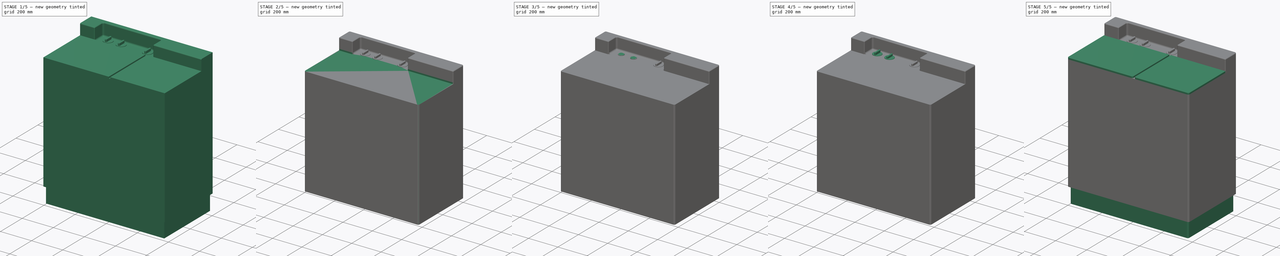
[diagram: build sequence overview — one tinted view per stage of 5, left to right]
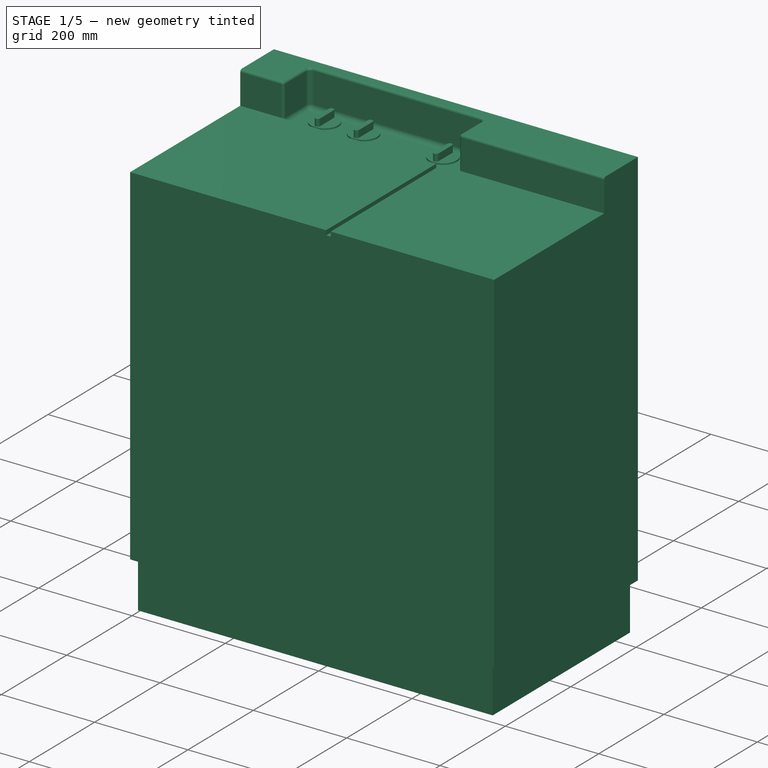
[diagram: stage 1 of 5 — iso view after this stage's code; geometry added in this stage tinted green]
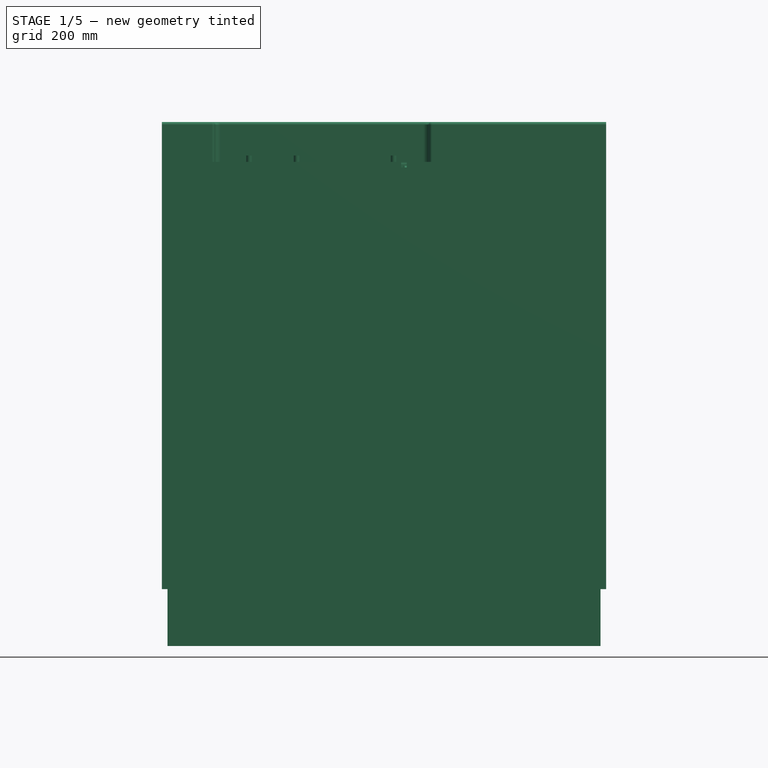
[diagram: stage 1 of 5 — front view after this stage's code; geometry added in this stage tinted green]
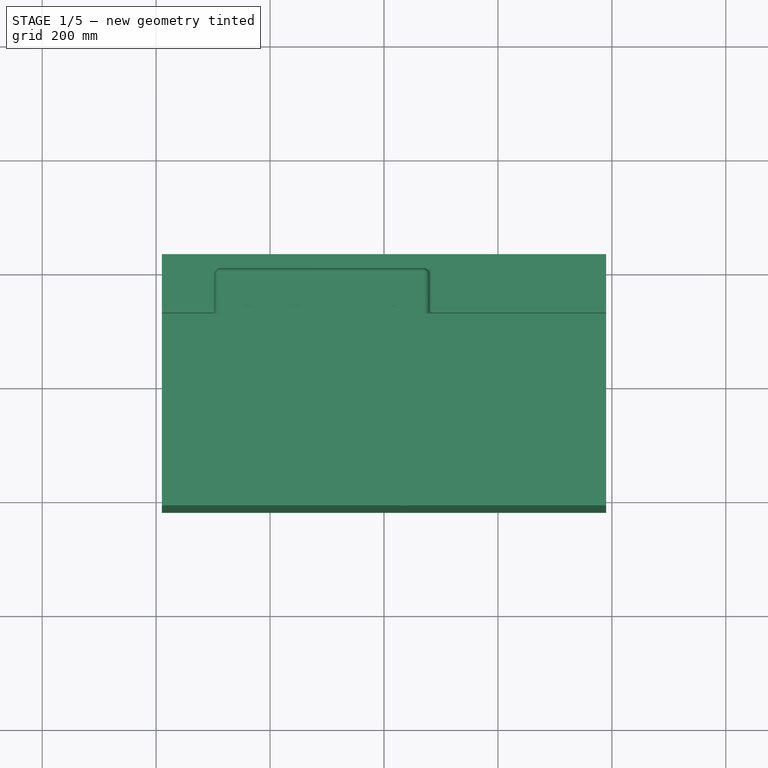
[diagram: stage 1 of 5 — top view after this stage's code; geometry added in this stage tinted green]
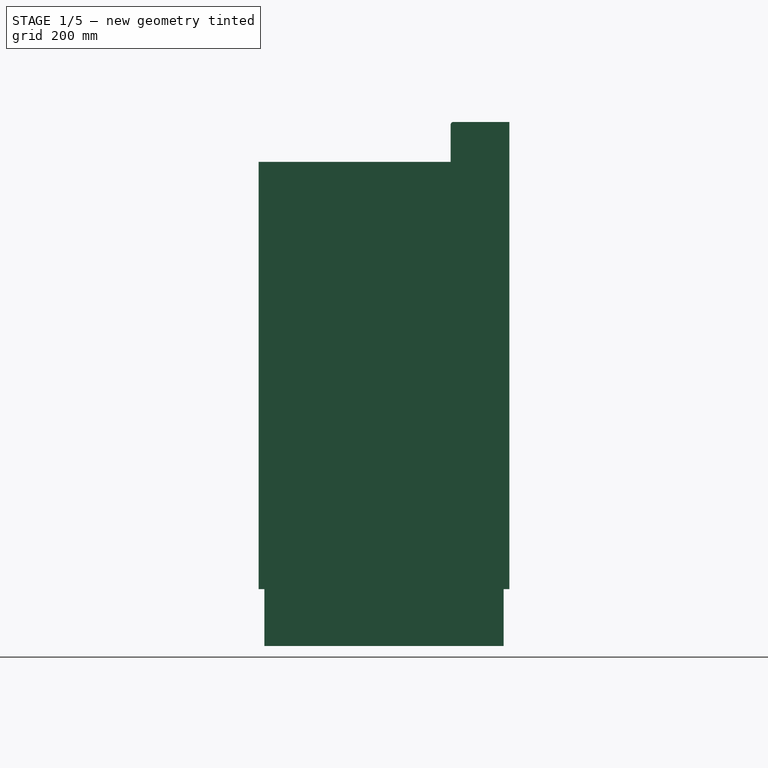
[diagram: stage 1 of 5 — right view after this stage's code; geometry added in this stage tinted green]
FCSTD DOCUMENT  (FreeCAD 1.0R39109 (Git))
Label: washing_machine
License: All rights reserved
LicenseURL: https://en.wikipedia.org/wiki/All_rights_reserved
objects: Sketcher::SketchObject×21, PartDesign::ShapeBinder×19, PartDesign::Pad×16, PartDesign::Fillet×13, PartDesign::Line×11, PartDesign::Plane×7, PartDesign::Body×7, Part::FeaturePython×7, PartDesign::Pocket×5, PartDesign::Chamfer×3, App::Part×1
note: 204 computed .brp shape members not serialized (recipe doc carries the construction recipe); baked Part::Feature solids carry a one-line shape summary decoded from their .brp

FEATURE [Sketcher::SketchObject] Sketch
  ArcFitTolerance = 1e-06
  AttachmentSupport = -> [XY_Plane]
  FullyConstrained = true
  MakeInternals = false
  MapMode = 5
  sketch-geometry (5):
    g0: LineSegment StartX=-380 StartY=-210 StartZ=0 EndX=380 EndY=-210 EndZ=0
    g1: LineSegment StartX=380 StartY=-210 StartZ=0 EndX=380 EndY=210 EndZ=0
    g2: LineSegment StartX=380 StartY=210 StartZ=0 EndX=-380 EndY=210 EndZ=0
    g3: LineSegment StartX=-380 StartY=210 StartZ=0 EndX=-380 EndY=-210 EndZ=0
    g4: GeomPoint [constr] X=0 Y=0 Z=0
  constraints (12):
    c: Coincident(g0,g1)
    c: Coincident(g1,g2)
    c: Coincident(g2,g3)
    c: Coincident(g3,g0)
    c: Horizontal(g0)
    c: Horizontal(g2)
    c: Vertical(g1)
    c: Vertical(g3)
    c: Symmetric(g2,g0,g4)
    c: Coincident(g4,g-1)
    c: DistanceX(g2,g2) = 760
    c: DistanceY(g1,g1) = 420
FEATURE [PartDesign::Pad] Pad
  Direction = (0,0,1)
  Length = 100
  Length2 = 10
  Profile = -> Sketch
  ReferenceAxis = -> Sketch [N_Axis]
  Refine = true
  Suppressed = false
  Type = 0
FEATURE [Sketcher::SketchObject] Sketch001
  ArcFitTolerance = 1e-06
  AttachmentSupport = -> [Pad]
  FullyConstrained = true
  MakeInternals = false
  MapMode = 5
  Placement = pos=(0,0,100) rot=(0,0,1;0rad)
  sketch-geometry (5):
    g0: LineSegment StartX=-390 StartY=-220 StartZ=0 EndX=390 EndY=-220 EndZ=0
    g1: LineSegment StartX=390 StartY=-220 StartZ=0 EndX=390 EndY=220 EndZ=0
    g2: LineSegment StartX=390 StartY=220 StartZ=0 EndX=-390 EndY=220 EndZ=0
    g3: LineSegment StartX=-390 StartY=220 StartZ=0 EndX=-390 EndY=-220 EndZ=0
    g4: GeomPoint [constr] X=0 Y=0 Z=0
  constraints (12):
    c: Coincident(g0,g1)
    c: Coincident(g1,g2)
    c: Coincident(g2,g3)
    c: Coincident(g3,g0)
    c: Horizontal(g0)
    c: Horizontal(g2)
    c: Vertical(g1)
    c: Vertical(g3)
    c: Symmetric(g2,g0,g4)
    c: Distance(g1,g3) = 780
    c: Distance(g0,g2) = 440
    c: Coincident(g4,g-1)
FEATURE [PartDesign::Pad] Pad001
  BaseFeature = -> Pad
  Direction = (0,0,1)
  Length = 740
  Length2 = 10
  Profile = -> Sketch001
  ReferenceAxis = -> Sketch001 [N_Axis]
  Refine = true
  Suppressed = false
  Type = 0
FEATURE [Sketcher::SketchObject] Sketch002
  ArcFitTolerance = 1e-06
  AttachmentSupport = -> [Pad001]
  ExternalGeometry = -> [Pad001]
  FullyConstrained = false
  MakeInternals = false
  MapMode = 5
  Placement = pos=(0,0,840) rot=(0,0,1;0rad)
  sketch-geometry (9):
    g0: LineSegment StartX=-390 StartY=116.893 StartZ=0 EndX=-390 EndY=-220 EndZ=0
    g1: LineSegment StartX=-390 StartY=-220 StartZ=0 EndX=30 EndY=-220 EndZ=0
    g2: LineSegment StartX=30 StartY=-220 StartZ=0 EndX=30 EndY=116.893 EndZ=0
    g3: LineSegment [constr] StartX=30 StartY=220 StartZ=0 EndX=40 EndY=220 EndZ=0
    g4: LineSegment StartX=40 StartY=116.893 StartZ=0 EndX=40 EndY=-220 EndZ=0
    g5: LineSegment StartX=40 StartY=-220 StartZ=0 EndX=390 EndY=-220 EndZ=0
    g6: LineSegment StartX=390 StartY=-220 StartZ=0 EndX=390 EndY=116.893 EndZ=0
    g7: LineSegment StartX=-390 StartY=116.893 StartZ=0 EndX=30 EndY=116.893 EndZ=0
    g8: LineSegment StartX=40 StartY=116.893 StartZ=0 EndX=390 EndY=116.893 EndZ=0
  constraints (20):
    c: Coincident(g0,g1)
    c: Coincident(g1,g2)
    c: Vertical(g0)
    c: Vertical(g2)
    c: Horizontal(g1)
    c: Distance(g1,g-3) = 440
    c: Distance(g3) = 10
    c: PointOnObject(g3,g-3)
    c: Coincident(g4,g5)
    c: Coincident(g5,g6)
    c: Vertical(g4)
    c: Vertical(g6)
    c: Horizontal(g5)
    c: Coincident(g5,g-4)
    c: Horizontal(g7)
    c: Coincident(g0,g7)
    c: Coincident(g2,g7)
    c: Horizontal(g8)
    c: Coincident(g8,g4)
    c: Coincident(g8,g6)
FEATURE [PartDesign::Pad] Pad002
  BaseFeature = -> Pad001
  Direction = (0,0,1)
  Length = 10
  Length2 = 10
  Profile = -> Sketch002
  ReferenceAxis = -> Sketch002 [N_Axis]
  Suppressed = false
  Type = 0
FEATURE [Sketcher::SketchObject] Sketch003
  ArcFitTolerance = 1e-06
  AttachmentSupport = -> [Pad002]
  ExternalGeometry = -> [Pad002]
  FullyConstrained = false
  MakeInternals = false
  MapMode = 5
  Placement = pos=(0,0,840) rot=(0,0,1;0rad)
  sketch-geometry (8):
    g0: LineSegment StartX=390 StartY=116.893 StartZ=0 EndX=390 EndY=220 EndZ=0
    g1: LineSegment StartX=390 StartY=220 StartZ=0 EndX=-390 EndY=220 EndZ=0
    g2: LineSegment StartX=-390 StartY=220 StartZ=0 EndX=-390 EndY=116.893 EndZ=0
    g3: LineSegment StartX=-390 StartY=116.893 StartZ=0 EndX=-297.073 EndY=116.893 EndZ=0
    g4: LineSegment StartX=-297.073 StartY=116.893 StartZ=0 EndX=-297.073 EndY=195.064 EndZ=0
    g5: LineSegment StartX=-297.073 StartY=195.064 StartZ=0 EndX=79.089 EndY=195.064 EndZ=0
    g6: LineSegment StartX=79.089 StartY=195.064 StartZ=0 EndX=79.089 EndY=116.893 EndZ=0
    g7: LineSegment StartX=79.089 StartY=116.893 StartZ=0 EndX=390 EndY=116.893 EndZ=0
  constraints (17):
    c: Coincident(g0,g1)
    c: Coincident(g1,g2)
    c: Horizontal(g1)
    c: Vertical(g0)
    c: Vertical(g2)
    c: Coincident(g0,g-5)
    c: Coincident(g3,g2)
    c: PointOnObject(g3,g-4)
    c: Horizontal(g3)
    c: Coincident(g4,g3)
    c: Vertical(g4)
    c: Horizontal(g5)
    c: PointOnObject(g6,g-3)
    c: Vertical(g6)
    c: Coincident(g7,g6)
    c: Coincident(g7,g0)
    c: Horizontal(g7)
FEATURE [PartDesign::Pad] Pad003
  BaseFeature = -> Pad002
  Direction = (0,0,1)
  Length = 80
  Length2 = 10
  Profile = -> Sketch003
  ReferenceAxis = -> Sketch003 [N_Axis]
  Suppressed = false
  Type = 0
FEATURE [Sketcher::SketchObject] Sketch004
  ArcFitTolerance = 1e-06
  AttachmentSupport = -> [Pad003]
  ExternalGeometry = -> [Pad003]
  FullyConstrained = false
  MakeInternals = false
  MapMode = 5
  Placement = pos=(0,0,840) rot=(0,0,1;0rad)
  sketch-geometry (4):
    g0: Circle CenterX=-236.553 CenterY=155.978 CenterZ=0 NormalX=0 NormalY=0 NormalZ=1 AngleXU=0 Radius=19.0264
    g1: Circle CenterX=17.148 CenterY=155.978 CenterZ=0 NormalX=0 NormalY=0 NormalZ=1 AngleXU=0 Radius=19.0264
    g2: Circle CenterX=-153.083 CenterY=155.978 CenterZ=0 NormalX=0 NormalY=0 NormalZ=1 AngleXU=0 Radius=19.0264
    g3: LineSegment [constr] StartX=-297.073 StartY=155.978 StartZ=0 EndX=79.089 EndY=155.978 EndZ=0
  constraints (7):
    c: Symmetric(g-3,g-3,g3)
    c: Symmetric(g-4,g-4,g3)
    c: PointOnObject(g2,g3)
    c: PointOnObject(g0,g3)
    c: PointOnObject(g1,g3)
    c: Equal(g0,g2)
    c: Equal(g2,g1)
FEATURE [PartDesign::Pad] Pad004
  BaseFeature = -> Pad003
  Direction = (0,0,1)
  Length = 3
  Length2 = 10
  Profile = -> Sketch004
  ReferenceAxis = -> Sketch004 [N_Axis]
  Suppressed = false
  Type = 0
FEATURE [Sketcher::SketchObject] Sketch005
  ArcFitTolerance = 1e-06
  AttachmentSupport = -> [Pad004]
  ExternalGeometry = -> [Pad004]
  FullyConstrained = false
  MakeInternals = false
  MapMode = 5
  Placement = pos=(0,0,843) rot=(0,0,1;0rad)
  sketch-geometry (3):
    g0: Circle CenterX=-236.553 CenterY=155.978 CenterZ=0 NormalX=0 NormalY=0 NormalZ=1 AngleXU=0 Radius=29.3345
    g1: Circle CenterX=-153.083 CenterY=155.978 CenterZ=0 NormalX=0 NormalY=0 NormalZ=1 AngleXU=0 Radius=29.3345
    g2: Circle CenterX=17.148 CenterY=155.978 CenterZ=0 NormalX=0 NormalY=0 NormalZ=1 AngleXU=0 Radius=29.3345
  constraints (5):
    c: Coincident(g0,g-3)
    c: Coincident(g1,g-4)
    c: Coincident(g2,g-5)
    c: Equal(g0,g1)
    c: Equal(g1,g2)
FEATURE [PartDesign::Pad] Pad005
  BaseFeature = -> Pad004
  Direction = (0,0,1)
  Length = 3
  Length2 = 10
  Profile = -> Sketch005
  ReferenceAxis = -> Sketch005 [N_Axis]
  Suppressed = false
  Type = 0
FEATURE [Sketcher::SketchObject] Sketch006
  ArcFitTolerance = 1e-06
  AttachmentSupport = -> [Pad005]
  ExternalGeometry = -> [Pad005]
  FullyConstrained = false
  MakeInternals = false
  MapMode = 5
  Placement = pos=(0,0,846) rot=(0,0,1;0rad)
  sketch-geometry (12):
    g0: ArcOfCircle CenterX=-236.553 CenterY=135.079 CenterZ=0 NormalX=0 NormalY=0 NormalZ=1 AngleXU=0 Radius=5.28796 StartAngle=3.14159 EndAngle=6.28319
    g1: ArcOfCircle CenterX=-236.553 CenterY=176.878 CenterZ=0 NormalX=0 NormalY=0 NormalZ=1 AngleXU=0 Radius=5.28796 StartAngle=-2.7e-15 EndAngle=3.14159
    g2: LineSegment StartX=-241.841 StartY=135.079 StartZ=0 EndX=-241.841 EndY=176.878 EndZ=0
    g3: LineSegment StartX=-231.265 StartY=135.079 StartZ=0 EndX=-231.265 EndY=176.878 EndZ=0
    g4: ArcOfCircle CenterX=-153.083 CenterY=135.079 CenterZ=0 NormalX=0 NormalY=0 NormalZ=1 AngleXU=0 Radius=5.28796 StartAngle=3.14159 EndAngle=6.28319
    g5: ArcOfCircle CenterX=-153.083 CenterY=176.878 CenterZ=0 NormalX=0 NormalY=0 NormalZ=1 AngleXU=0 Radius=5.28796 StartAngle=-1.8e-15 EndAngle=3.14159
    g6: LineSegment StartX=-158.371 StartY=135.079 StartZ=0 EndX=-158.371 EndY=176.878 EndZ=0
    g7: LineSegment StartX=-147.795 StartY=135.079 StartZ=0 EndX=-147.795 EndY=176.878 EndZ=0
    g8: ArcOfCircle CenterX=17.148 CenterY=135.079 CenterZ=0 NormalX=0 NormalY=0 NormalZ=1 AngleXU=0 Radius=5.28796 StartAngle=3.14159 EndAngle=6.28319
    g9: ArcOfCircle CenterX=17.148 CenterY=176.878 CenterZ=0 NormalX=0 NormalY=0 NormalZ=1 AngleXU=0 Radius=5.28796 StartAngle=2.2e-15 EndAngle=3.14159
    g10: LineSegment StartX=11.86 StartY=135.079 StartZ=0 EndX=11.86 EndY=176.878 EndZ=0
    g11: LineSegment StartX=22.4359 StartY=135.079 StartZ=0 EndX=22.4359 EndY=176.878 EndZ=0
  constraints (25):
    c: Tangent(g0,g2) = 1.5708
    c: Tangent(g0,g3) = -1.5708
    c: Tangent(g1,g2) = 1.5708
    c: Tangent(g1,g3) = -1.5708
    c: Equal(g0,g1)
    c: Vertical(g2)
    c: Symmetric(g1,g0,g-3)
    c: Tangent(g4,g6) = 1.5708
    c: Tangent(g4,g7) = -1.5708
    c: Tangent(g5,g6) = 1.5708
    c: Tangent(g5,g7) = -1.5708
    c: Equal(g4,g5)
    c: Tangent(g8,g10) = 1.5708
    c: Tangent(g8,g11) = -1.5708
    c: Tangent(g9,g10) = 1.5708
    c: Tangent(g9,g11) = -1.5708
    c: Equal(g8,g9)
    c: Vertical(g10)
    c: Symmetric(g9,g8,g-5)
    c: Symmetric(g5,g4,g-4)
    c: Equal(g3,g6)
    c: Equal(g6,g10)
    c: Equal(g9,g5)
    c: Equal(g5,g1)
    c: Vertical(g7)
FEATURE [PartDesign::Pad] Pad006
  BaseFeature = -> Pad005
  Direction = (0,0,1)
  Length = 15
  Length2 = 10
  Profile = -> Sketch006
  ReferenceAxis = -> Sketch006 [N_Axis]
  Suppressed = false
  Type = 0
FEATURE [PartDesign::Fillet] Fillet
  Base = -> Pad006 [Edge65,Edge79,Edge69,Edge71,Edge63,Edge70,Edge80]
  BaseFeature = -> Pad006
  Radius = 5
  SupportTransform = false
  Suppressed = false
  UseAllEdges = false
FEATURE [PartDesign::Fillet] Fillet001
  Base = -> Fillet [Edge61,Edge78,Edge60,Edge73,Edge74]
  BaseFeature = -> Fillet
  Radius = 10
  SupportTransform = false
  Suppressed = false
  UseAllEdges = false
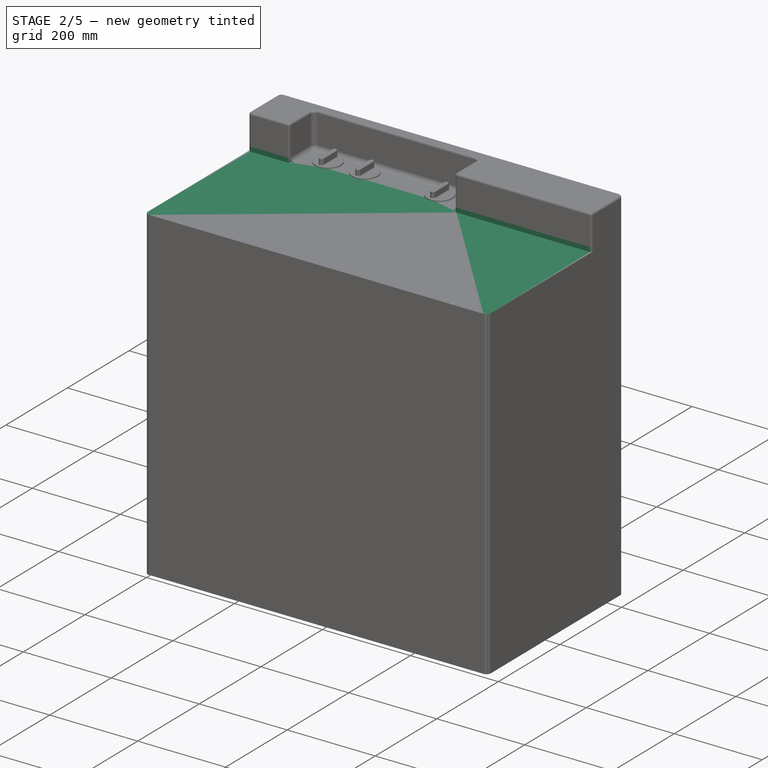
[diagram: stage 2 of 5 — iso view after this stage's code; geometry added in this stage tinted green]
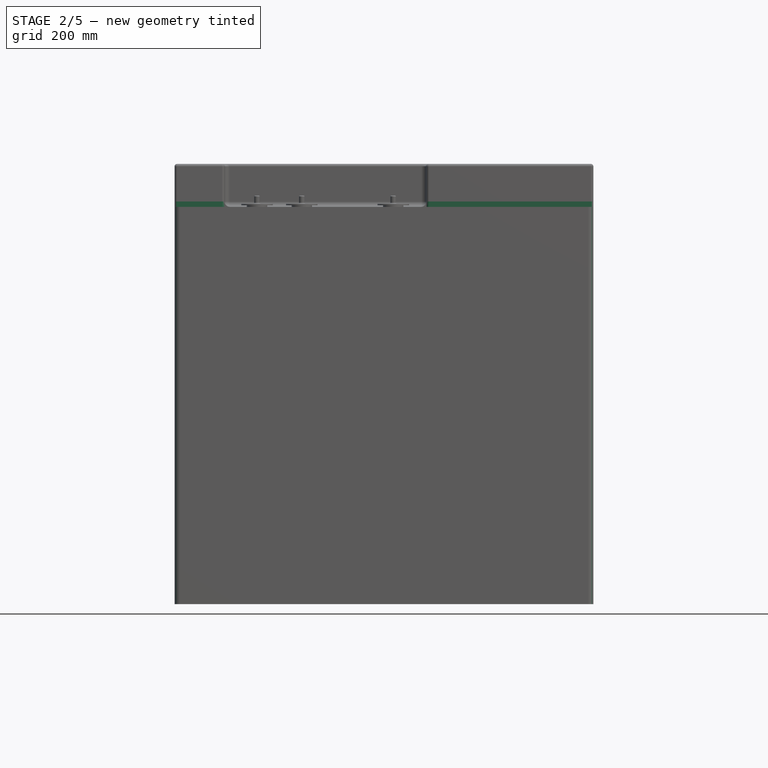
[diagram: stage 2 of 5 — front view after this stage's code; geometry added in this stage tinted green]
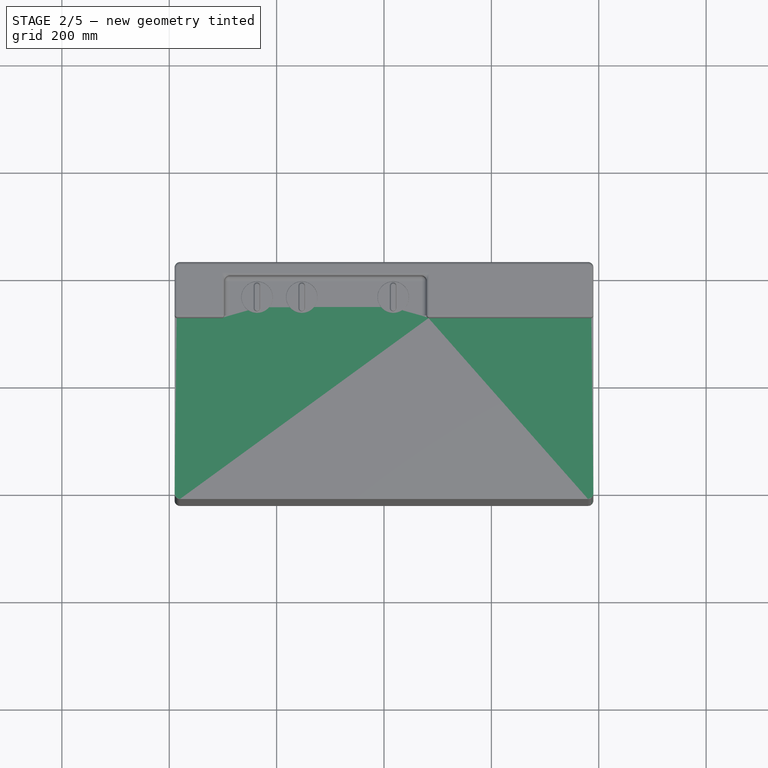
[diagram: stage 2 of 5 — top view after this stage's code; geometry added in this stage tinted green]
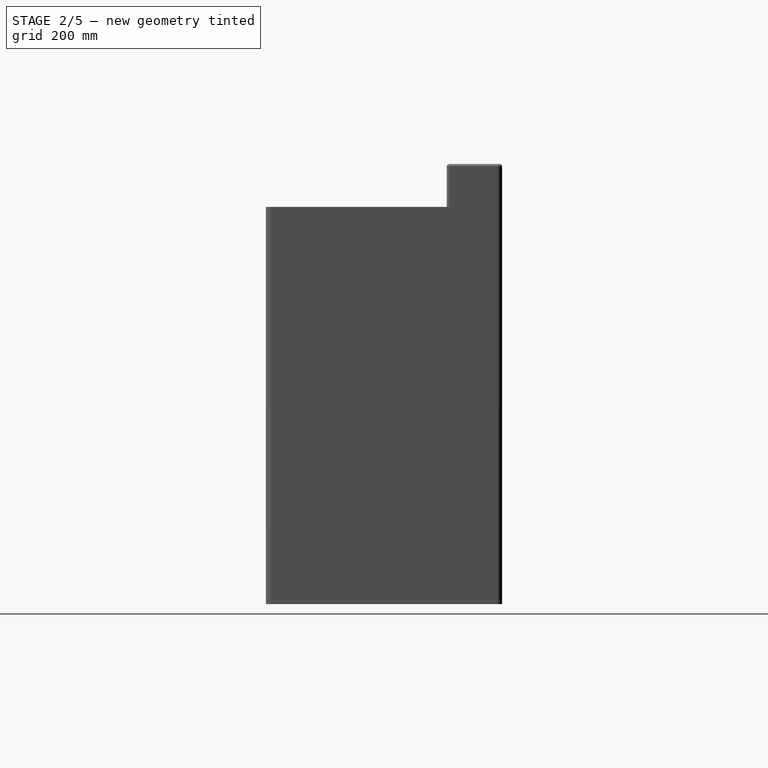
[diagram: stage 2 of 5 — right view after this stage's code; geometry added in this stage tinted green]
FEATURE [PartDesign::Fillet] Fillet002
  Base = -> Fillet001 [Edge50,Edge41,Edge42,Edge72,Edge59,Edge14]
  BaseFeature = -> Fillet001
  Radius = 10
  SupportTransform = false
  Suppressed = false
  UseAllEdges = false
FEATURE [PartDesign::Fillet] Fillet003
  Base = -> Fillet002 [Edge130,Edge132,Edge129,Edge134]
  BaseFeature = -> Fillet002
  Radius = 10
  SupportTransform = false
  Suppressed = false
  UseAllEdges = false
FEATURE [PartDesign::Fillet] Fillet004
  Base = -> Fillet003 [Edge80,Edge88]
  BaseFeature = -> Fillet003
  Radius = 5
  SupportTransform = false
  Suppressed = false
  UseAllEdges = false
FEATURE [PartDesign::Fillet] Fillet005
  Base = -> Fillet004 [Edge194,Edge198,Edge202,Edge220,Edge212,Edge228]
  BaseFeature = -> Fillet004
  Radius = 2
  SupportTransform = false
  Suppressed = false
  UseAllEdges = false
FEATURE [PartDesign::Fillet] Fillet006
  Base = -> Fillet005 [Edge190,Edge192,Edge5]
  BaseFeature = -> Fillet005
  Radius = 1
  SupportTransform = false
  Suppressed = false
  UseAllEdges = false
FEATURE [PartDesign::Body] Body001
  AllowCompound = false
  Group = -> [DatumPlane,CopyFillet006,DatumPlane001,CopyFillet007,CopyFillet008,Sketch007,Pad008]
  Origin = -> Origin001
  Tip = -> Pad008
FEATURE [Sketcher::SketchObject] Sketch009
  ArcFitTolerance = 1e-06
  AttachmentSupport = -> [Fillet006]
  ExternalGeometry = -> [Fillet006]
  FullyConstrained = false
  MakeInternals = false
  MapMode = 5
  Placement = pos=(0,0,850) rot=(0,0,1;0rad)
  sketch-geometry (13):
    g0: LineSegment StartX=-385 StartY=116.893 StartZ=0 EndX=-302.073 EndY=116.893 EndZ=0
    g1: ArcOfCircle CenterX=-385 CenterY=121.893 CenterZ=0 NormalX=0 NormalY=0 NormalZ=1 AngleXU=0 Radius=5 StartAngle=3.14159 EndAngle=4.71239
    g2: ArcOfCircle CenterX=-302.073 CenterY=121.893 CenterZ=0 NormalX=0 NormalY=0 NormalZ=1 AngleXU=0 Radius=5 StartAngle=4.71239 EndAngle=6.28319
    g3: GeomPoint [constr] X=-390 Y=116.893 Z=0
    g4: GeomPoint [constr] X=-297.073 Y=185.064 Z=0
    g5: LineSegment [constr] StartX=-390 StartY=-210 StartZ=0 EndX=-390 EndY=-220 EndZ=0
    g6: LineSegment [constr] StartX=-380 StartY=-220 StartZ=0 EndX=-390 EndY=-220 EndZ=0
    g7: LineSegment StartX=-390 StartY=-220 StartZ=0 EndX=30 EndY=-220 EndZ=0
    g8: LineSegment StartX=30 StartY=-220 StartZ=0 EndX=30 EndY=116.893 EndZ=0
    g9: LineSegment StartX=-390 StartY=116.893 StartZ=0 EndX=-390 EndY=-220 EndZ=0
    g10: LineSegment StartX=-390 StartY=116.893 StartZ=0 EndX=-390 EndY=121.893 EndZ=0
    g11: LineSegment StartX=-297.073 StartY=121.893 StartZ=0 EndX=-297.073 EndY=116.893 EndZ=0
    g12: LineSegment StartX=-297.073 StartY=116.893 StartZ=0 EndX=30 EndY=116.893 EndZ=0
  constraints (26):
    c: Tangent(g0,g1) = -1.5708
    c: Tangent(g0,g2) = -1.5708
    c: Horizontal(g0)
    c: Equal(g1,g2)
    c: PointOnObject(g3,g0)
    c: Coincident(g3,g-3)
    c: Coincident(g4,g-10)
    c: Coincident(g5,g-5)
    c: Vertical(g5)
    c: Tangent(g6,g-6) = 1.5708
    c: Coincident(g5,g6)
    c: Coincident(g7,g8)
    c: Coincident(g9,g7)
    c: Horizontal(g7)
    c: Vertical(g8)
    c: Vertical(g9)
    c: Coincident(g7,g5)
    c: Coincident(g8,g-4)
    c: Coincident(g10,g9)
    c: Coincident(g10,g1)
    c: Vertical(g10)
    c: Tangent(g11,g2) = 1.5708
    c: Coincident(g11,g-11)
    c: Vertical(g11)
    c: Coincident(g12,g11)
    c: Coincident(g12,g8)
FEATURE [PartDesign::Pocket] Pocket
  BaseFeature = -> Fillet006
  Direction = (0,0,-1)
  Length = 10
  Length2 = 5
  Profile = -> Sketch009
  ReferenceAxis = -> Sketch009 [N_Axis]
  Refine = true
  Suppressed = false
  Type = 0
FEATURE [Sketcher::SketchObject] Sketch010
  ArcFitTolerance = 1e-06
  AttachmentSupport = -> [Pocket]
  ExternalGeometry = -> [Pocket]
  FullyConstrained = false
  MakeInternals = false
  MapMode = 5
  Placement = pos=(0,0,850) rot=(0,0,1;0rad)
  sketch-geometry (18):
    g0: LineSegment StartX=84.089 StartY=116.893 StartZ=0 EndX=385 EndY=116.893 EndZ=0
    g1: ArcOfCircle CenterX=84.089 CenterY=121.893 CenterZ=0 NormalX=0 NormalY=0 NormalZ=1 AngleXU=0 Radius=5 StartAngle=3.14159 EndAngle=4.71239
    g2: ArcOfCircle CenterX=385 CenterY=121.893 CenterZ=0 NormalX=0 NormalY=0 NormalZ=1 AngleXU=0 Radius=5 StartAngle=4.71239 EndAngle=6.28319
    g3: GeomPoint [constr] X=390 Y=210 Z=0
    g4: GeomPoint [constr] X=79.089 Y=116.893 Z=0
    g5: LineSegment StartX=79.089 StartY=121.893 StartZ=0 EndX=79.089 EndY=116.893 EndZ=0
    g6: LineSegment [constr] StartX=390 StartY=-210 StartZ=0 EndX=390 EndY=-220 EndZ=0
    g7: LineSegment [constr] StartX=380 StartY=-220 StartZ=0 EndX=390 EndY=-220 EndZ=0
    g8: LineSegment StartX=40 StartY=106.893 StartZ=0 EndX=40 EndY=-210 EndZ=0
    g9: LineSegment StartX=50 StartY=-220 StartZ=0 EndX=380 EndY=-220 EndZ=0
    g10: LineSegment StartX=390 StartY=-210 StartZ=0 EndX=390 EndY=106.893 EndZ=0
    g11: ArcOfCircle CenterX=50 CenterY=-210 CenterZ=0 NormalX=0 NormalY=0 NormalZ=1 AngleXU=0 Radius=10 StartAngle=3.14159 EndAngle=4.71239
    g12: ArcOfCircle CenterX=380 CenterY=-210 CenterZ=0 NormalX=0 NormalY=0 NormalZ=1 AngleXU=0 Radius=10 StartAngle=4.71239 EndAngle=6.28319
    g13: GeomPoint [constr] X=40 Y=116.893 Z=0
    g14: GeomPoint [constr] X=390 Y=-220 Z=0
    g15: LineSegment StartX=390 StartY=106.893 StartZ=0 EndX=390 EndY=121.893 EndZ=0
    g16: LineSegment StartX=40 StartY=106.893 StartZ=0 EndX=40 EndY=116.893 EndZ=0
    g17: LineSegment StartX=79.089 StartY=116.893 StartZ=0 EndX=40 EndY=116.893 EndZ=0
  constraints (35):
    c: Tangent(g0,g1) = -1.5708
    c: Tangent(g0,g2) = -1.5708
    c: Horizontal(g0)
    c: Equal(g1,g2)
    c: PointOnObject(g4,g0)
    c: Coincident(g3,g-12)
    c: Coincident(g4,g-8)
    c: Coincident(g5,g1)
    c: Coincident(g5,g4)
    c: Vertical(g5)
    c: Coincident(g6,g-12)
    c: Vertical(g6)
    c: Coincident(g7,g-6)
    c: Horizontal(g7)
    c: Coincident(g6,g7)
    c: Tangent(g8,g11) = -1.5708
    c: Tangent(g9,g11) = -1.5708
    c: Tangent(g9,g12) = -1.5708
    c: Tangent(g10,g12) = -1.5708
    c: Vertical(g8)
    c: Vertical(g10)
    c: Horizontal(g9)
    c: Equal(g11,g12)
    c: PointOnObject(g13,g8)
    c: PointOnObject(g14,g9)
    c: PointOnObject(g14,g10)
    c: Coincident(g13,g-8)
    c: Coincident(g14,g6)
    c: Coincident(g15,g10)
    c: Coincident(g15,g2)
    c: Vertical(g15)
    c: Coincident(g16,g8)
    c: Coincident(g16,g13)
    c: Coincident(g17,g4)
    c: Coincident(g17,g13)
FEATURE [PartDesign::Pocket] Pocket001
  BaseFeature = -> Pocket
  Direction = (0,0,-1)
  Length = 10
  Length2 = 5
  Profile = -> Sketch010
  ReferenceAxis = -> Sketch010 [N_Axis]
  Refine = true
  Suppressed = false
  Type = 0
FEATURE [Sketcher::SketchObject] Sketch011
  ArcFitTolerance = 1e-06
  AttachmentSupport = -> [Pocket001]
  ExternalGeometry = -> [Pocket001]
  FullyConstrained = false
  MakeInternals = false
  MapMode = 5
  Placement = pos=(0,0,920) rot=(0,0,1;0rad)
  sketch-geometry (8):
    g0: LineSegment StartX=-297.073 StartY=116.893 StartZ=0 EndX=-287.073 EndY=116.893 EndZ=0
    g1: LineSegment StartX=-287.073 StartY=116.893 StartZ=0 EndX=-287.073 EndY=121.893 EndZ=0
    g2: LineSegment StartX=-287.073 StartY=121.893 StartZ=0 EndX=-297.073 EndY=121.893 EndZ=0
    g3: LineSegment StartX=-297.073 StartY=116.893 StartZ=0 EndX=-297.073 EndY=121.893 EndZ=0
    g4: LineSegment StartX=69.089 StartY=121.893 StartZ=0 EndX=69.089 EndY=116.893 EndZ=0
    g5: LineSegment StartX=69.089 StartY=116.893 StartZ=0 EndX=79.089 EndY=116.893 EndZ=0
    g6: LineSegment StartX=79.089 StartY=116.893 StartZ=0 EndX=79.089 EndY=121.893 EndZ=0
    g7: LineSegment StartX=69.089 StartY=121.893 StartZ=0 EndX=79.089 EndY=121.893 EndZ=0
  constraints (20):
    c: Coincident(g0,g1)
    c: Coincident(g1,g2)
    c: Vertical(g1)
    c: Horizontal(g0)
    c: Horizontal(g2)
    c: Coincident(g0,g-7)
    c: Coincident(g3,g-7)
    c: Vertical(g3)
    c: Coincident(g2,g3)
    c: PointOnObject(g0,g3)
    c: Coincident(g4,g5)
    c: Horizontal(g5)
    c: Vertical(g4)
    c: Coincident(g4,g-6)
    c: Coincident(g6,g-6)
    c: Vertical(g6)
    c: PointOnObject(g5,g6)
    c: Coincident(g7,g4)
    c: Coincident(g7,g6)
    c: Horizontal(g7)
FEATURE [PartDesign::Pocket] Pocket002
  BaseFeature = -> Pocket001
  Direction = (0,0,-1)
  Length = 80
  Length2 = 5
  Profile = -> Sketch011
  ReferenceAxis = -> Sketch011 [N_Axis]
  Refine = true
  Suppressed = false
  Type = 0
FEATURE [PartDesign::Body] Body003
  AllowCompound = false
  Group = -> [DatumPlane003,CopyPocket002,Sketch012,Pad009]
  Origin = -> Origin003
  Tip = -> Pad009
FEATURE [Sketcher::SketchObject] Sketch013
  ArcFitTolerance = 1e-06
  AttachmentSupport = -> [Pocket002]
  ExternalGeometry = -> [Pocket002]
  FullyConstrained = false
  MakeInternals = false
  MapMode = 5
  Placement = pos=(0,0,0) rot=(1,0,0;3.14159rad)
  sketch-geometry (8):
    g0: LineSegment [constr] StartX=-370 StartY=210 StartZ=0 EndX=-403.084 EndY=210 EndZ=0
    g1: LineSegment [constr] StartX=-380 StartY=200 StartZ=0 EndX=-380 EndY=210 EndZ=0
    g2: LineSegment [constr] StartX=380 StartY=-200 StartZ=0 EndX=380 EndY=-228.401 EndZ=0
    g3: LineSegment [constr] StartX=370 StartY=-210 StartZ=0 EndX=380 EndY=-210 EndZ=0
    g4: LineSegment StartX=-380 StartY=210 StartZ=0 EndX=-380 EndY=-210 EndZ=0
    g5: LineSegment StartX=-380 StartY=-210 StartZ=0 EndX=380 EndY=-210 EndZ=0
    g6: LineSegment StartX=380 StartY=-210 StartZ=0 EndX=380 EndY=210 EndZ=0
    g7: LineSegment StartX=380 StartY=210 StartZ=0 EndX=-380 EndY=210 EndZ=0
  constraints (19):
    c: Horizontal(g0)
    c: PointOnObject(g1,g0)
    c: Vertical(g1)
    c: Coincident(g3,g-6)
    c: PointOnObject(g3,g2)
    c: Horizontal(g3)
    c: Coincident(g0,g-5)
    c: Coincident(g4,g5)
    c: Coincident(g5,g6)
    c: Coincident(g6,g7)
    c: Coincident(g7,g4)
    c: Vertical(g4)
    c: Vertical(g6)
    c: Horizontal(g5)
    c: Horizontal(g7)
    c: Coincident(g4,g1)
    c: Coincident(g5,g3)
    c: Vertical(g2)
    c: Coincident(g2,g-6)
FEATURE [PartDesign::Pocket] Pocket003
  BaseFeature = -> Pocket002
  Direction = (0,0,1)
  Length = 100
  Length2 = 5
  Profile = -> Sketch013
  ReferenceAxis = -> Sketch013 [N_Axis]
  Refine = true
  Suppressed = false
  Type = 0
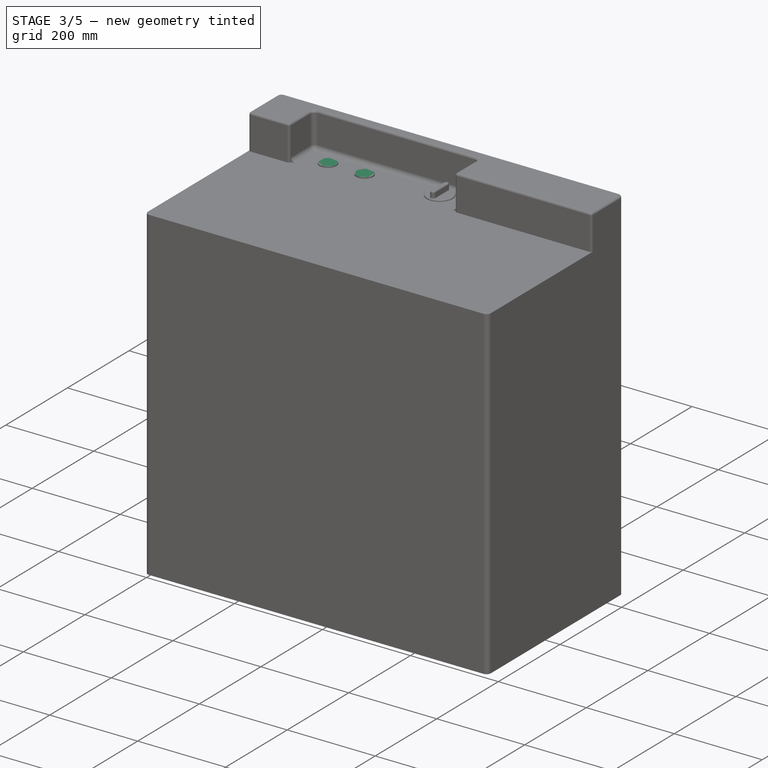
[diagram: stage 3 of 5 — iso view after this stage's code; geometry added in this stage tinted green]
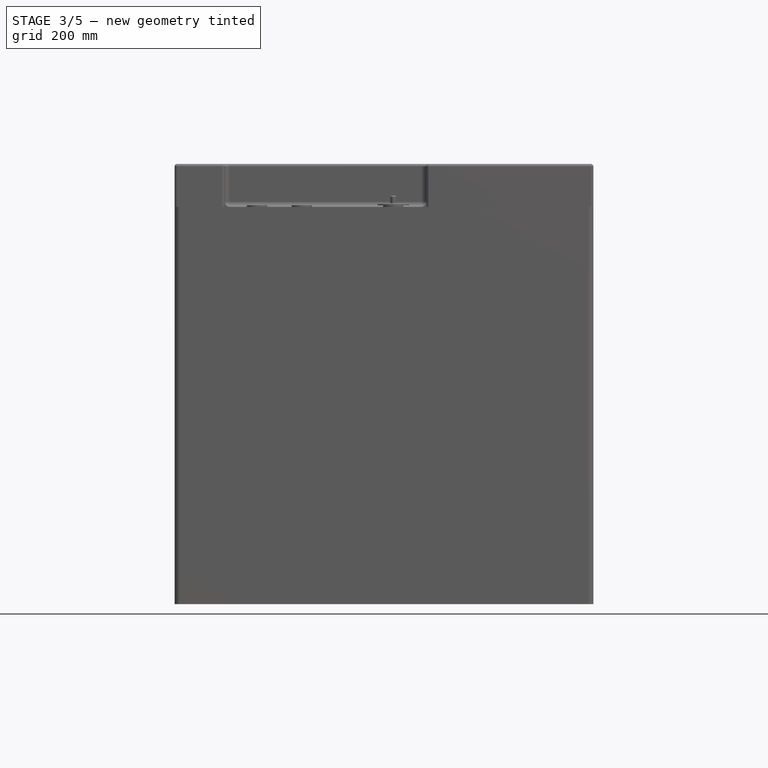
[diagram: stage 3 of 5 — front view after this stage's code; geometry added in this stage tinted green]
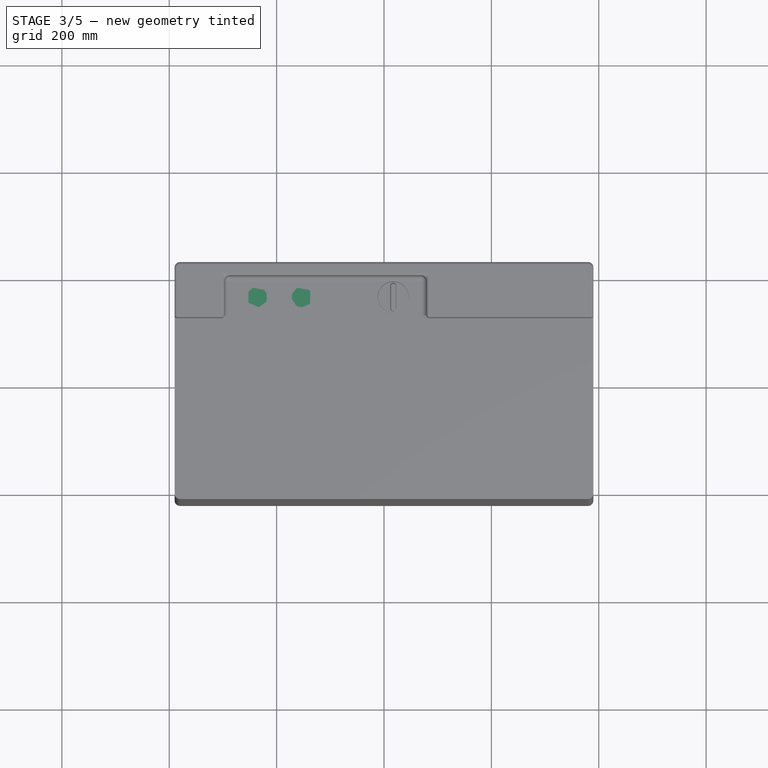
[diagram: stage 3 of 5 — top view after this stage's code; geometry added in this stage tinted green]
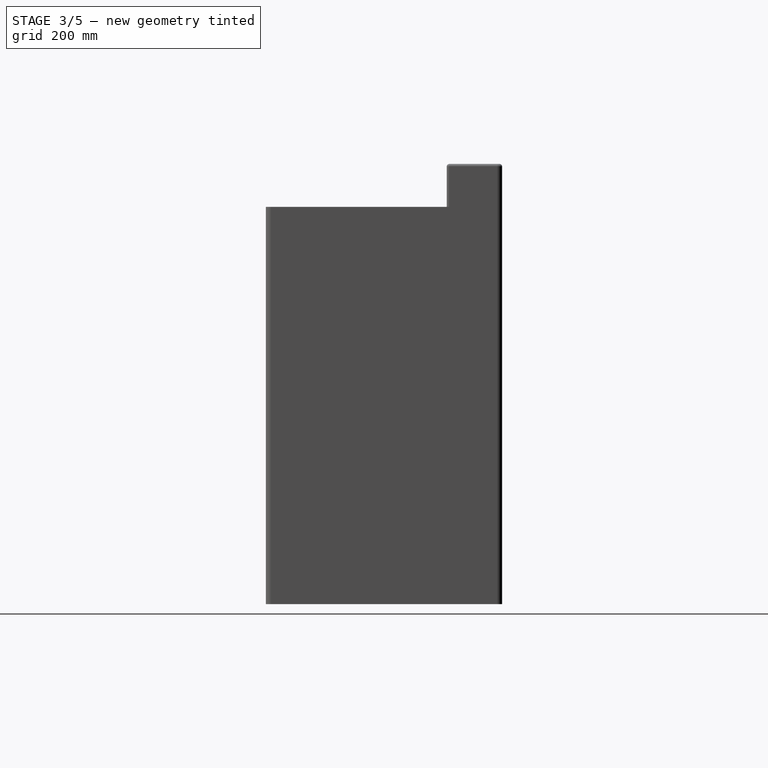
[diagram: stage 3 of 5 — right view after this stage's code; geometry added in this stage tinted green]
FEATURE [PartDesign::Body] Body005
  AllowCompound = false
  Group = -> [DatumPlane005,CopyPocket008,DatumLine004,CopyPocket009,DatumLine005,CopyPocket010,DatumLine006,CopyPocket011,Sketch016,DatumLine007,CopyPocket012,Pad012,Sketch017,Pad013,Chamfer001,Fillet009,Fillet010]
  Origin = -> Origin006
  Tip = -> Fillet010
FEATURE [PartDesign::ShapeBinder] CopyPocket013
  Placement = pos=(0,0,843) rot=(0,0,1;0rad)
  TraceSupport = false
FEATURE [PartDesign::Plane] DatumPlane006
  AttachmentSupport = -> [CopyPocket013]
  Length = 234.835
  MapMode = 11
  Placement = pos=(17.148,155.978,843) rot=(0,0,1;1.5708rad)
  ResizeMode = 0
  Width = 96.0049
FEATURE [PartDesign::ShapeBinder] CopyPocket014
  TraceSupport = false
FEATURE [PartDesign::Line] DatumLine008
  AttacherType = Attacher::AttachEngineLine
  AttachmentSupport = -> [CopyPocket014]
  Length = 20
  MapMode = 29
  Placement = pos=(22.4359,0,848) rot=(0,0.707107,0.707107;3.14159rad)
  ResizeMode = 0
FEATURE [PartDesign::ShapeBinder] CopyPocket015
  TraceSupport = false
FEATURE [PartDesign::Line] DatumLine009
  AttacherType = Attacher::AttachEngineLine
  AttachmentSupport = -> [CopyPocket015]
  Length = 20
  MapMode = 19
  Placement = pos=(17.148,135.079,859) rot=(-1,0,0;3.14159rad)
  ResizeMode = 0
FEATURE [PartDesign::ShapeBinder] CopyPocket016
  TraceSupport = false
FEATURE [PartDesign::Line] DatumLine010
  AttacherType = Attacher::AttachEngineLine
  AttachmentSupport = -> [CopyPocket016]
  Length = 20
  MapMode = 19
  Placement = pos=(17.148,176.878,859) rot=(0,1,0;3.14159rad)
  ResizeMode = 0
FEATURE [Sketcher::SketchObject] Sketch018
  ArcFitTolerance = 1e-06
  AttachmentSupport = -> [DatumPlane006]
  ExternalGeometry = -> [CopyPocket013]
  FullyConstrained = true
  MakeInternals = false
  MapMode = 5
  Placement = pos=(17.148,155.978,843) rot=(0,0,1;1.5708rad)
  sketch-geometry (1):
    g0: Circle CenterX=0 CenterY=0 CenterZ=0 NormalX=0 NormalY=0 NormalZ=1 AngleXU=0 Radius=29.3345
  constraints (2):
    c: Coincident(g0,g-1)
    c: Tangent(g0,g-3)
FEATURE [PartDesign::Pad] Pad014
  Direction = (0,0,1)
  Length = 3
  Length2 = 10
  Placement = pos=(17.148,155.978,843) rot=(0,0,1;1.5708rad)
  Profile = -> Sketch018
  ReferenceAxis = -> Sketch018 [N_Axis]
  Refine = true
  Suppressed = false
  Type = 0
FEATURE [Sketcher::SketchObject] Sketch019
  ArcFitTolerance = 1e-06
  AttachmentSupport = -> [Pad014]
  ExternalGeometry = -> [CopyPocket015,CopyPocket016]
  FullyConstrained = false
  MakeInternals = false
  MapMode = 5
  Placement = pos=(17.148,155.978,846) rot=(0,0,1;1.5708rad)
  sketch-geometry (4):
    g0: ArcOfCircle CenterX=-20.8993 CenterY=-1.765e-13 CenterZ=0 NormalX=0 NormalY=0 NormalZ=1 AngleXU=0 Radius=5.28796 StartAngle=1.5708 EndAngle=4.71239
    g1: ArcOfCircle CenterX=20.8993 CenterY=-1.765e-13 CenterZ=0 NormalX=0 NormalY=0 NormalZ=1 AngleXU=0 Radius=5.28796 StartAngle=4.71239 EndAngle=7.85398
    g2: LineSegment StartX=-20.8993 StartY=5.28796 StartZ=0 EndX=20.8993 EndY=5.28796 EndZ=0
    g3: LineSegment StartX=-20.8993 StartY=-5.28796 StartZ=0 EndX=20.8993 EndY=-5.28796 EndZ=0
  constraints (6):
    c: Tangent(g0,g2) = 1.5708
    c: Tangent(g0,g3) = -1.5708
    c: Tangent(g1,g2) = 1.5708
    c: Tangent(g1,g3) = -1.5708
    c: Equal(g0,g1)
    c: Horizontal(g3)
FEATURE [PartDesign::Pad] Pad015
  BaseFeature = -> Pad014
  Direction = (0,0,1)
  Length = 15
  Length2 = 10
  Placement = pos=(17.148,155.978,843) rot=(0,0,1;1.5708rad)
  Profile = -> Sketch019
  ReferenceAxis = -> Sketch019 [N_Axis]
  Refine = true
  Suppressed = false
  Type = 0
FEATURE [PartDesign::Chamfer] Chamfer002
  Angle = 45
  Base = -> Pad015 [Edge3]
  BaseFeature = -> Pad015
  ChamferType = 0
  FlipDirection = false
  Placement = pos=(17.148,155.978,843) rot=(0,0,1;1.5708rad)
  Refine = true
  Size = 1
  Size2 = 1
  SupportTransform = false
  Suppressed = false
  UseAllEdges = false
FEATURE [PartDesign::Fillet] Fillet011
  Base = -> Chamfer002 [Edge7]
  BaseFeature = -> Chamfer002
  Placement = pos=(17.148,155.978,843) rot=(0,0,1;1.5708rad)
  Radius = 1
  Refine = true
  SupportTransform = false
  Suppressed = false
  UseAllEdges = false
FEATURE [PartDesign::Fillet] Fillet012
  Base = -> Fillet011 [Edge17]
  BaseFeature = -> Fillet011
  Placement = pos=(17.148,155.978,843) rot=(0,0,1;1.5708rad)
  Radius = 3
  Refine = true
  SupportTransform = false
  Suppressed = false
  UseAllEdges = false
FEATURE [PartDesign::Body] Body006
  AllowCompound = false
  Group = -> [DatumPlane006,CopyPocket013,DatumLine008,CopyPocket014,DatumLine009,CopyPocket015,DatumLine010,CopyPocket016,Sketch018,Pad014,Sketch019,Pad015,Chamfer002,Fillet011,Fillet012]
  Origin = -> Origin007
  Tip = -> Fillet012
FEATURE [Sketcher::SketchObject] Sketch020
  ArcFitTolerance = 1e-06
  AttachmentSupport = -> [Pocket003]
  ExternalGeometry = -> [Pocket003]
  FullyConstrained = false
  MakeInternals = false
  MapMode = 5
  Placement = pos=(0,0,861) rot=(0,0,1;0rad)
  sketch-geometry (3):
    g0: Circle CenterX=-236.553 CenterY=155.978 CenterZ=0 NormalX=0 NormalY=0 NormalZ=1 AngleXU=0 Radius=29.3345
    g1: Circle CenterX=17.148 CenterY=155.978 CenterZ=0 NormalX=0 NormalY=0 NormalZ=1 AngleXU=0 Radius=29.3345
    g2: Circle CenterX=-153.083 CenterY=155.978 CenterZ=0 NormalX=0 NormalY=0 NormalZ=1 AngleXU=0 Radius=29.3345
  constraints (5):
    c: Tangent(g0,g-3)
    c: Coincident(g1,g-4)
    c: Equal(g1,g-4)
    c: Coincident(g2,g-5)
    c: Equal(g2,g-5)
FEATURE [PartDesign::Pocket] Pocket004
  BaseFeature = -> Pocket003
  Direction = (0,0,-1)
  Length = 18
  Length2 = 5
  Profile = -> Sketch020
  ReferenceAxis = -> Sketch020 [N_Axis]
  Refine = true
  Suppressed = false
  Type = 0
FEATURE [Part::FeaturePython] Clone006  label="switch3_clone"  # Draft clone (typed FeaturePython)
  AttacherType = Attacher::AttachEngine3D
  Fuse = false
  Objects = -> [Body006]
  Scale = (1,1,1)
FEATURE [Part::FeaturePython] Clone  label="body_clone"  # Draft clone (typed FeaturePython)
  AttacherType = Attacher::AttachEngine3D
  Fuse = false
  Objects = -> [Body]
  Scale = (1,1,1)
FEATURE [App::Part] Part  label="wachingmachine"
  Group = -> [Clone001,Clone002,Clone003,Clone004,Clone005,Clone006,Clone]
  Origin = -> Origin004
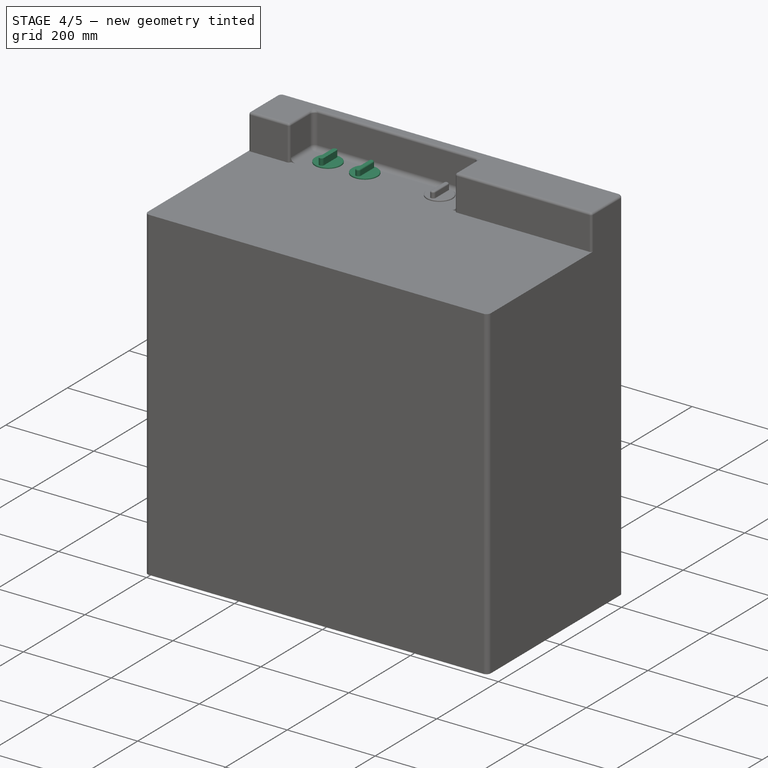
[diagram: stage 4 of 5 — iso view after this stage's code; geometry added in this stage tinted green]
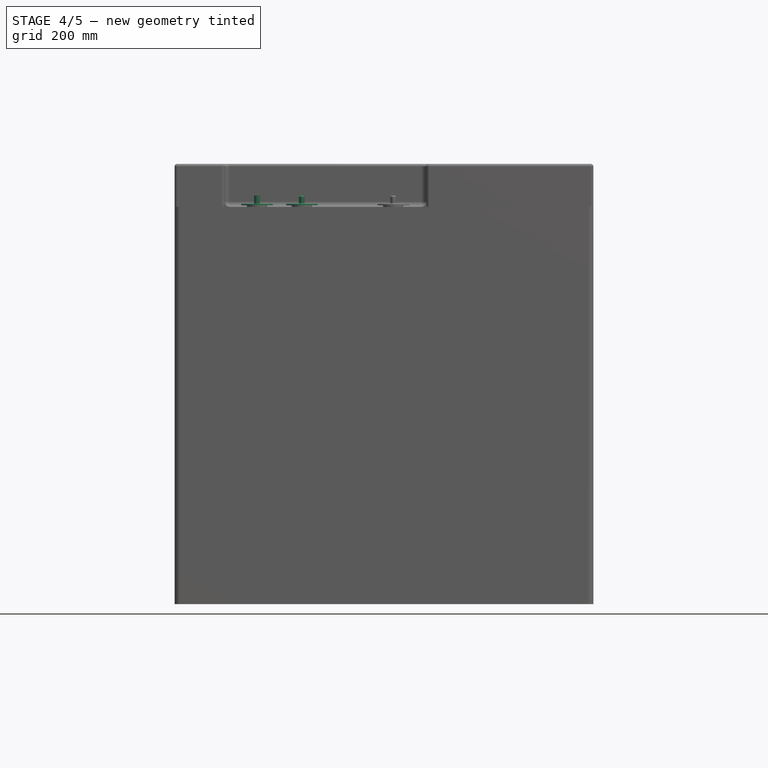
[diagram: stage 4 of 5 — front view after this stage's code; geometry added in this stage tinted green]
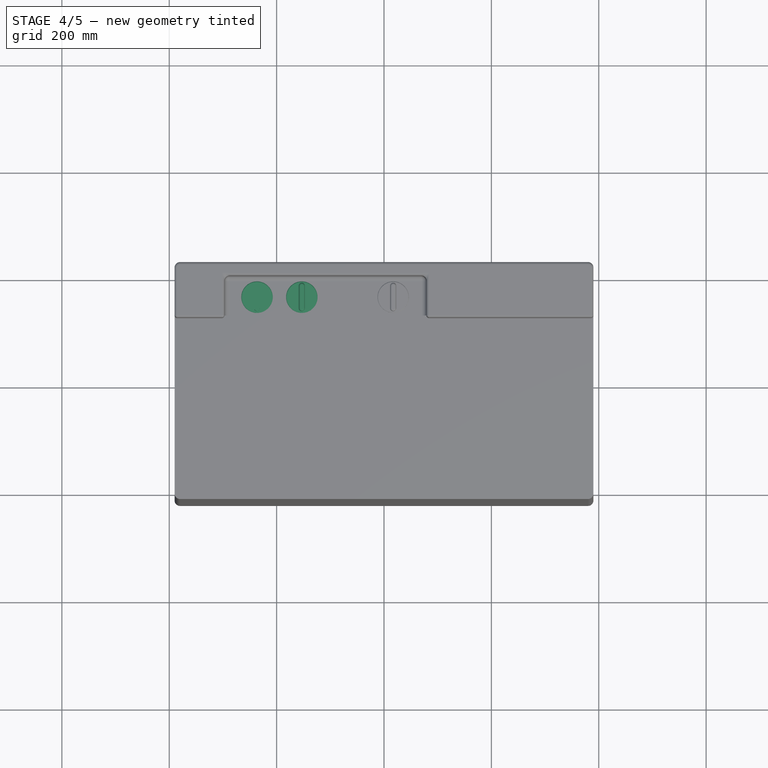
[diagram: stage 4 of 5 — top view after this stage's code; geometry added in this stage tinted green]
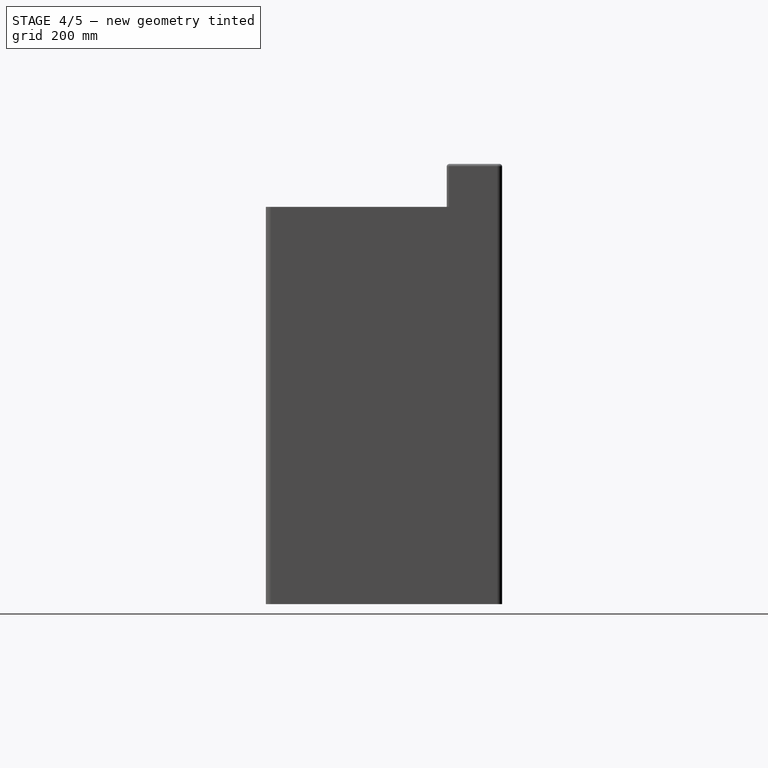
[diagram: stage 4 of 5 — right view after this stage's code; geometry added in this stage tinted green]
FEATURE [PartDesign::ShapeBinder] CopyPocket003
  Placement = pos=(0,0,843) rot=(0,0,1;0rad)
  TraceSupport = false
FEATURE [PartDesign::Plane] DatumPlane004
  AttachmentSupport = -> [CopyPocket003]
  Length = 259.781
  MapMode = 11
  Placement = pos=(-236.553,155.978,843) rot=(0,0,1;1.5708rad)
  ResizeMode = 0
  Width = 340.352
FEATURE [PartDesign::ShapeBinder] CopyPocket004
  TraceSupport = false
FEATURE [PartDesign::Line] DatumLine
  AttacherType = Attacher::AttachEngineLine
  AttachmentSupport = -> [CopyPocket004]
  Length = 20
  MapMode = 29
  Placement = pos=(-231.265,0,859) rot=(1,0,0;1.5708rad)
  ResizeMode = 0
FEATURE [PartDesign::ShapeBinder] CopyPocket005
  TraceSupport = false
FEATURE [PartDesign::Line] DatumLine001
  AttacherType = Attacher::AttachEngineLine
  AttachmentSupport = -> [CopyPocket005]
  Length = 20
  MapMode = 29
  Placement = pos=(-231.265,0,859) rot=(1,0,0;1.5708rad)
  ResizeMode = 0
FEATURE [PartDesign::ShapeBinder] CopyPocket006
  TraceSupport = false
FEATURE [PartDesign::Line] DatumLine002
  AttacherType = Attacher::AttachEngineLine
  AttachmentSupport = -> [CopyPocket006]
  Length = 20
  MapMode = 19
  Placement = pos=(-236.553,135.079,859) rot=(-1,0,0;3.14159rad)
  ResizeMode = 0
FEATURE [PartDesign::ShapeBinder] CopyPocket007
  TraceSupport = false
FEATURE [PartDesign::Line] DatumLine003
  AttacherType = Attacher::AttachEngineLine
  AttachmentSupport = -> [CopyPocket007]
  Length = 20
  MapMode = 19
  Placement = pos=(-236.553,176.878,859) rot=(0,1,0;3.14159rad)
  ResizeMode = 0
FEATURE [Sketcher::SketchObject] Sketch014
  ArcFitTolerance = 1e-06
  AttachmentSupport = -> [DatumPlane004]
  ExternalGeometry = -> [CopyPocket003]
  FullyConstrained = true
  MakeInternals = false
  MapMode = 5
  Placement = pos=(-236.553,155.978,843) rot=(0,0,1;1.5708rad)
  sketch-geometry (1):
    g0: Circle CenterX=0 CenterY=0 CenterZ=0 NormalX=0 NormalY=0 NormalZ=1 AngleXU=0 Radius=29.3345
  constraints (2):
    c: Coincident(g0,g-1)
    c: Tangent(g0,g-3)
FEATURE [PartDesign::Pad] Pad010
  Direction = (0,0,1)
  Length = 3
  Length2 = 10
  Placement = pos=(-236.553,155.978,843) rot=(0,0,1;1.5708rad)
  Profile = -> Sketch014
  ReferenceAxis = -> Sketch014 [N_Axis]
  Refine = true
  Suppressed = false
  Type = 0
FEATURE [Sketcher::SketchObject] Sketch015
  ArcFitTolerance = 1e-06
  AttachmentSupport = -> [Pad010]
  ExternalGeometry = -> [CopyPocket006,CopyPocket007]
  FullyConstrained = false
  MakeInternals = false
  MapMode = 5
  Placement = pos=(-236.553,155.978,846) rot=(0,0,1;1.5708rad)
  sketch-geometry (4):
    g0: ArcOfCircle CenterX=-20.8993 CenterY=-3.532e-13 CenterZ=0 NormalX=0 NormalY=0 NormalZ=1 AngleXU=0 Radius=5.28796 StartAngle=1.5708 EndAngle=4.71239
    g1: ArcOfCircle CenterX=20.8993 CenterY=-3.532e-13 CenterZ=0 NormalX=0 NormalY=0 NormalZ=1 AngleXU=0 Radius=5.28796 StartAngle=4.71239 EndAngle=7.85398
    g2: LineSegment StartX=-20.8993 StartY=5.28796 StartZ=0 EndX=20.8993 EndY=5.28796 EndZ=0
    g3: LineSegment StartX=-20.8993 StartY=-5.28796 StartZ=0 EndX=20.8993 EndY=-5.28796 EndZ=0
  constraints (6):
    c: Tangent(g0,g2) = 1.5708
    c: Tangent(g0,g3) = -1.5708
    c: Tangent(g1,g2) = 1.5708
    c: Tangent(g1,g3) = -1.5708
    c: Equal(g0,g1)
    c: Horizontal(g3)
FEATURE [PartDesign::Pad] Pad011
  BaseFeature = -> Pad010
  Direction = (0,0,1)
  Length = 15
  Length2 = 10
  Placement = pos=(-236.553,155.978,843) rot=(0,0,1;1.5708rad)
  Profile = -> Sketch015
  ReferenceAxis = -> Sketch015 [N_Axis]
  Refine = true
  Suppressed = false
  Type = 0
FEATURE [PartDesign::Chamfer] Chamfer
  Angle = 45
  Base = -> Pad011 [Edge3]
  BaseFeature = -> Pad011
  ChamferType = 0
  FlipDirection = false
  Placement = pos=(-236.553,155.978,843) rot=(0,0,1;1.5708rad)
  Refine = true
  Size = 1
  Size2 = 1
  SupportTransform = false
  Suppressed = false
  UseAllEdges = false
FEATURE [PartDesign::Body] Body004
  AllowCompound = false
  Group = -> [DatumPlane004,CopyPocket003,DatumLine,CopyPocket004,DatumLine001,CopyPocket005,DatumLine002,CopyPocket006,DatumLine003,CopyPocket007,Sketch014,Pad010,Sketch015,Pad011,Chamfer,Fillet007,Fillet008]
  Origin = -> Origin005
  Tip = -> Fillet008
FEATURE [PartDesign::ShapeBinder] CopyPocket008
  Placement = pos=(0,0,843) rot=(0,0,1;0rad)
  TraceSupport = false
FEATURE [PartDesign::Plane] DatumPlane005
  AttachmentSupport = -> [CopyPocket008]
  Length = 252.085
  MapMode = 11
  Placement = pos=(-153.083,155.978,843) rot=(0,0,1;1.5708rad)
  ResizeMode = 0
  Width = 249.187
FEATURE [PartDesign::ShapeBinder] CopyPocket009
  TraceSupport = false
FEATURE [PartDesign::Line] DatumLine004
  AttacherType = Attacher::AttachEngineLine
  AttachmentSupport = -> [CopyPocket009]
  Length = 20
  MapMode = 29
  Placement = pos=(-147.795,0,859) rot=(1,0,0;1.5708rad)
  ResizeMode = 0
FEATURE [PartDesign::ShapeBinder] CopyPocket010
  TraceSupport = false
FEATURE [PartDesign::Line] DatumLine005
  AttacherType = Attacher::AttachEngineLine
  AttachmentSupport = -> [CopyPocket010]
  Length = 20
  MapMode = 29
  Placement = pos=(-147.795,0,859) rot=(1,0,0;1.5708rad)
  ResizeMode = 0
FEATURE [PartDesign::ShapeBinder] CopyPocket011
  TraceSupport = false
FEATURE [PartDesign::Line] DatumLine006
  AttacherType = Attacher::AttachEngineLine
  AttachmentSupport = -> [CopyPocket011]
  Length = 20
  MapMode = 19
  Placement = pos=(-153.083,176.878,859) rot=(0,1,0;3.14159rad)
  ResizeMode = 0
FEATURE [Sketcher::SketchObject] Sketch016
  ArcFitTolerance = 1e-06
  AttachmentSupport = -> [DatumPlane005]
  ExternalGeometry = -> [CopyPocket008]
  FullyConstrained = true
  MakeInternals = false
  MapMode = 5
  Placement = pos=(-153.083,155.978,843) rot=(0,0,1;1.5708rad)
  sketch-geometry (1):
    g0: Circle CenterX=0 CenterY=0 CenterZ=0 NormalX=0 NormalY=0 NormalZ=1 AngleXU=0 Radius=29.3345
  constraints (2):
    c: Coincident(g0,g-1)
    c: Tangent(g0,g-3)
FEATURE [PartDesign::ShapeBinder] CopyPocket012
  TraceSupport = false
FEATURE [PartDesign::Line] DatumLine007
  AttacherType = Attacher::AttachEngineLine
  AttachmentSupport = -> [CopyPocket012]
  Length = 20
  MapMode = 19
  Placement = pos=(-153.083,135.079,859) rot=(-1,0,0;3.14159rad)
  ResizeMode = 0
FEATURE [PartDesign::Pad] Pad012
  Direction = (0,0,1)
  Length = 3
  Length2 = 10
  Placement = pos=(-153.083,155.978,843) rot=(0,0,1;1.5708rad)
  Profile = -> Sketch016
  ReferenceAxis = -> Sketch016 [N_Axis]
  Refine = true
  Suppressed = false
  Type = 0
FEATURE [Sketcher::SketchObject] Sketch017
  ArcFitTolerance = 1e-06
  AttachmentSupport = -> [Pad012]
  ExternalGeometry = -> [CopyPocket012,CopyPocket011]
  FullyConstrained = false
  MakeInternals = false
  MapMode = 5
  Placement = pos=(-153.083,155.978,846) rot=(0,0,1;1.5708rad)
  sketch-geometry (4):
    g0: ArcOfCircle CenterX=-20.8993 CenterY=-3.532e-13 CenterZ=0 NormalX=0 NormalY=0 NormalZ=1 AngleXU=0 Radius=5.28796 StartAngle=1.5708 EndAngle=4.71239
    g1: ArcOfCircle CenterX=20.8993 CenterY=-3.532e-13 CenterZ=0 NormalX=0 NormalY=0 NormalZ=1 AngleXU=0 Radius=5.28796 StartAngle=4.71239 EndAngle=7.85398
    g2: LineSegment StartX=-20.8993 StartY=5.28796 StartZ=0 EndX=20.8993 EndY=5.28796 EndZ=0
    g3: LineSegment StartX=-20.8993 StartY=-5.28796 StartZ=0 EndX=20.8993 EndY=-5.28796 EndZ=0
  constraints (6):
    c: Tangent(g0,g2) = 1.5708
    c: Tangent(g0,g3) = -1.5708
    c: Tangent(g1,g2) = 1.5708
    c: Tangent(g1,g3) = -1.5708
    c: Equal(g0,g1)
    c: Horizontal(g3)
FEATURE [PartDesign::Pad] Pad013
  BaseFeature = -> Pad012
  Direction = (0,0,1)
  Length = 15
  Length2 = 10
  Placement = pos=(-153.083,155.978,843) rot=(0,0,1;1.5708rad)
  Profile = -> Sketch017
  ReferenceAxis = -> Sketch017 [N_Axis]
  Refine = true
  Suppressed = false
  Type = 0
FEATURE [PartDesign::Chamfer] Chamfer001
  Angle = 45
  Base = -> Pad013 [Edge3]
  BaseFeature = -> Pad013
  ChamferType = 0
  FlipDirection = false
  Placement = pos=(-153.083,155.978,843) rot=(0,0,1;1.5708rad)
  Refine = true
  Size = 1
  Size2 = 1
  SupportTransform = false
  Suppressed = false
  UseAllEdges = false
FEATURE [PartDesign::Fillet] Fillet009
  Base = -> Chamfer001 [Edge7]
  BaseFeature = -> Chamfer001
  Placement = pos=(-153.083,155.978,843) rot=(0,0,1;1.5708rad)
  Radius = 1
  Refine = true
  SupportTransform = false
  Suppressed = false
  UseAllEdges = false
FEATURE [PartDesign::Fillet] Fillet010
  Base = -> Fillet009 [Edge17]
  BaseFeature = -> Fillet009
  Placement = pos=(-153.083,155.978,843) rot=(0,0,1;1.5708rad)
  Radius = 3
  Refine = true
  SupportTransform = false
  Suppressed = false
  UseAllEdges = false
FEATURE [Part::FeaturePython] Clone005  label="switch2_clone"  # Draft clone (typed FeaturePython)
  AttacherType = Attacher::AttachEngine3D
  Fuse = false
  Objects = -> [Body005]
  Scale = (1,1,1)
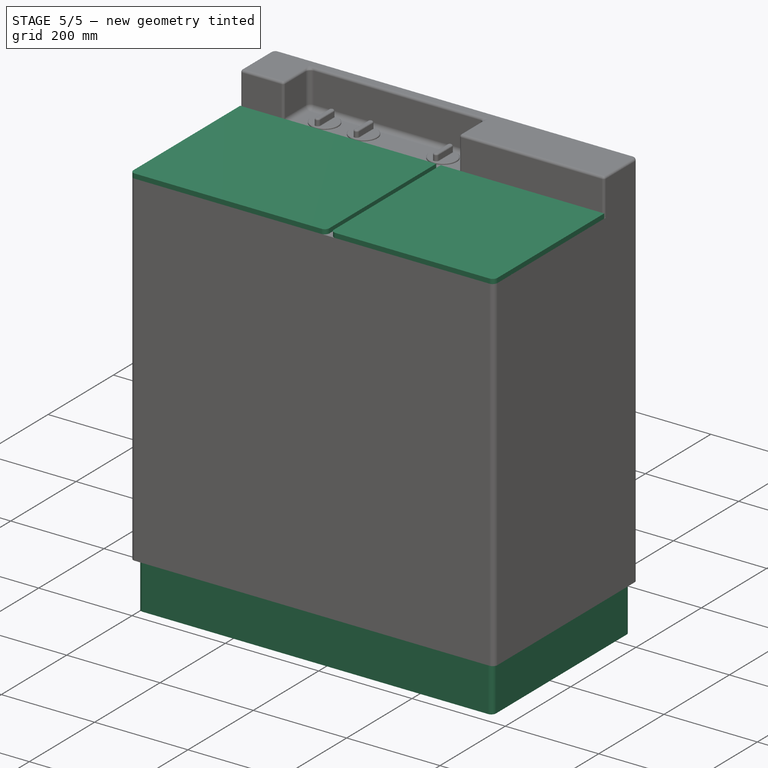
[diagram: stage 5 of 5 — iso view after this stage's code; geometry added in this stage tinted green]
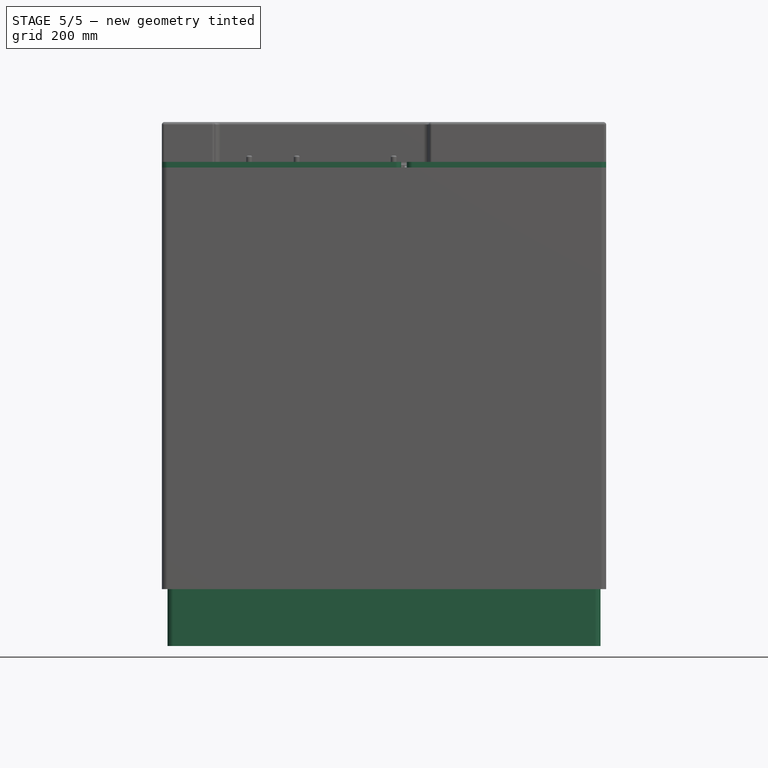
[diagram: stage 5 of 5 — front view after this stage's code; geometry added in this stage tinted green]
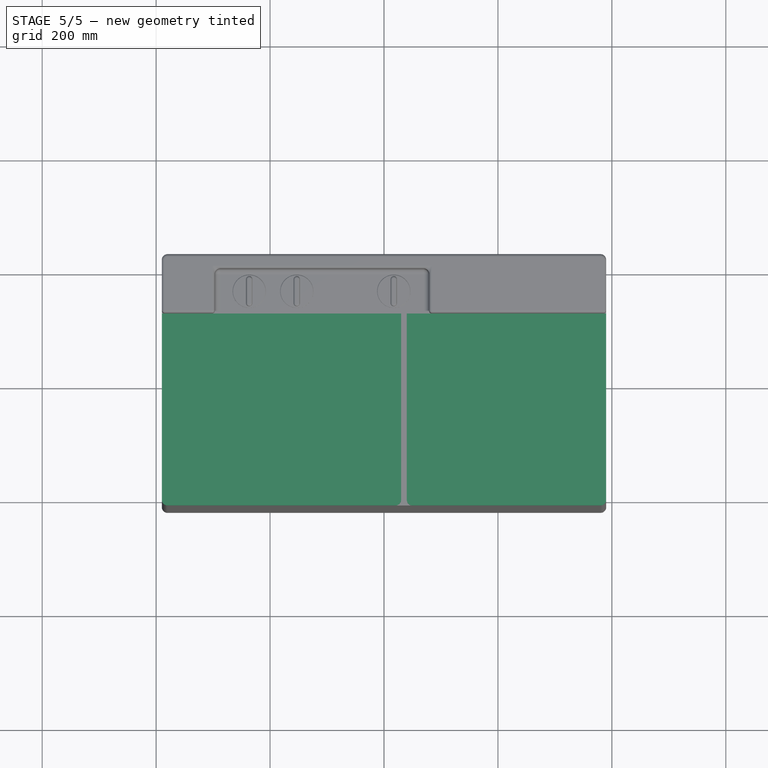
[diagram: stage 5 of 5 — top view after this stage's code; geometry added in this stage tinted green]
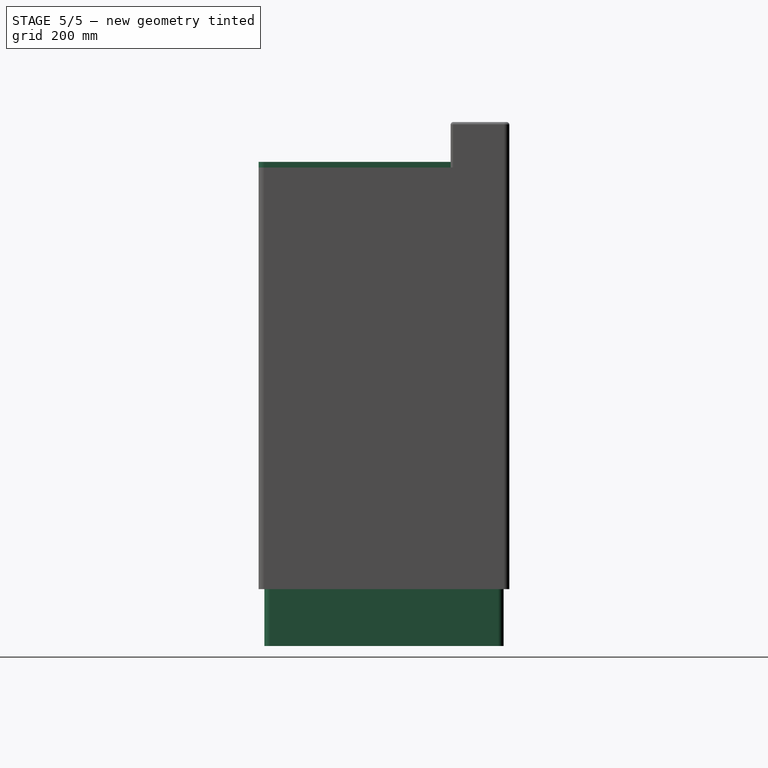
[diagram: stage 5 of 5 — right view after this stage's code; geometry added in this stage tinted green]
FEATURE [PartDesign::ShapeBinder] CopyFillet006
  TraceSupport = false
FEATURE [PartDesign::Plane] DatumPlane
  AttachmentSupport = -> [CopyFillet006]
  Length = 495.232
  MapMode = 5
  Placement = pos=(0,0,850) rot=(0,0,1;0rad)
  ResizeMode = 0
  Width = 412.124
FEATURE [PartDesign::ShapeBinder] CopyFillet007
  TraceSupport = false
FEATURE [PartDesign::Plane] DatumPlane001
  AttachmentSupport = -> [CopyFillet007]
  Length = 495.232
  MapMode = 5
  Placement = pos=(0,0,850) rot=(0,0,1;0rad)
  ResizeMode = 0
  Width = 412.124
FEATURE [PartDesign::ShapeBinder] CopyFillet008
  TraceSupport = false
FEATURE [Sketcher::SketchObject] Sketch007
  ArcFitTolerance = 1e-06
  AttachmentSupport = -> [CopyFillet008]
  ExternalGeometry = -> [CopyFillet006,CopyFillet007]
  FullyConstrained = false
  MakeInternals = false
  MapMode = 5
  Placement = pos=(0,0,850) rot=(0,0,1;0rad)
  sketch-geometry (12):
    g0: LineSegment [constr] StartX=30 StartY=-210 StartZ=0 EndX=30 EndY=-220 EndZ=0
    g1: LineSegment [constr] StartX=40 StartY=-210 StartZ=0 EndX=40.1423 EndY=-219.833 EndZ=0
    g2: LineSegment [constr] StartX=20 StartY=-220 StartZ=0 EndX=30 EndY=-220 EndZ=0
    g3: LineSegment [constr] StartX=50 StartY=-220 StartZ=0 EndX=40.1423 EndY=-219.833 EndZ=0
    g4: LineSegment StartX=-390 StartY=116.893 StartZ=0 EndX=-390 EndY=-210 EndZ=0
    g5: LineSegment StartX=-380 StartY=-220 StartZ=0 EndX=20 EndY=-220 EndZ=0
    g6: LineSegment StartX=30 StartY=-210 StartZ=0 EndX=30 EndY=116.893 EndZ=0
    g7: LineSegment StartX=30 StartY=116.893 StartZ=0 EndX=-390 EndY=116.893 EndZ=0
    g8: ArcOfCircle CenterX=-380 CenterY=-210 CenterZ=0 NormalX=0 NormalY=0 NormalZ=1 AngleXU=0 Radius=10 StartAngle=3.14159 EndAngle=4.71239
    g9: ArcOfCircle CenterX=20 CenterY=-210 CenterZ=0 NormalX=0 NormalY=0 NormalZ=1 AngleXU=0 Radius=10 StartAngle=4.71239 EndAngle=6.28319
    g10: GeomPoint [constr] X=-390 Y=116.893 Z=0
    g11: GeomPoint [constr] X=30 Y=-220 Z=0
  constraints (21):
    c: Coincident(g0,g-11)
    c: Vertical(g0)
    c: Coincident(g2,g-4)
    c: Horizontal(g2)
    c: Coincident(g0,g2)
    c: PointOnObject(g1,g3)
    c: Tangent(g4,g8) = -1.5708
    c: Tangent(g5,g8) = -1.5708
    c: Tangent(g5,g9) = -1.5708
    c: Tangent(g6,g9) = -1.5708
    c: Vertical(g4)
    c: Vertical(g6)
    c: Horizontal(g5)
    c: Equal(g8,g9)
    c: PointOnObject(g11,g5)
    c: Coincident(g10,g-14)
    c: Coincident(g11,g0)
    c: Coincident(g7,g10)
    c: Coincident(g4,g7)
    c: Coincident(g6,g-12)
    c: Coincident(g7,g6)
FEATURE [PartDesign::ShapeBinder] CopyCopyFillet007
  TraceSupport = false
FEATURE [PartDesign::Plane] DatumPlane002
  AttachmentSupport = -> [CopyCopyFillet007]
  Length = 490.335
  MapMode = 5
  Placement = pos=(0,0,850) rot=(0,0,1;0rad)
  ResizeMode = 0
  Width = 417.228
FEATURE [Sketcher::SketchObject] Sketch008
  ArcFitTolerance = 1e-06
  AttachmentSupport = -> [DatumPlane002]
  ExternalGeometry = -> [CopyCopyFillet007]
  FullyConstrained = false
  MakeInternals = false
  MapMode = 5
  Placement = pos=(0,0,850) rot=(0,0,1;0rad)
  sketch-geometry (10):
    g0: LineSegment [constr] StartX=40 StartY=-210 StartZ=0 EndX=40 EndY=-220 EndZ=0
    g1: LineSegment [constr] StartX=50 StartY=-220 StartZ=0 EndX=40 EndY=-220 EndZ=0
    g2: LineSegment StartX=390 StartY=116.893 StartZ=0 EndX=40 EndY=116.893 EndZ=0
    g3: LineSegment StartX=40 StartY=116.893 StartZ=0 EndX=40 EndY=-210 EndZ=0
    g4: LineSegment StartX=50 StartY=-220 StartZ=0 EndX=380 EndY=-220 EndZ=0
    g5: LineSegment StartX=390 StartY=-210 StartZ=0 EndX=390 EndY=116.893 EndZ=0
    g6: ArcOfCircle CenterX=50 CenterY=-210 CenterZ=0 NormalX=0 NormalY=0 NormalZ=1 AngleXU=0 Radius=10 StartAngle=3.14159 EndAngle=4.71239
    g7: ArcOfCircle CenterX=380 CenterY=-210 CenterZ=0 NormalX=0 NormalY=0 NormalZ=1 AngleXU=0 Radius=10 StartAngle=4.71239 EndAngle=6.28319
    g8: GeomPoint [constr] X=390 Y=116.893 Z=0
    g9: GeomPoint [constr] X=40 Y=-220 Z=0
  constraints (20):
    c: Coincident(g0,g-6)
    c: Vertical(g0)
    c: Coincident(g1,g-6)
    c: Horizontal(g1)
    c: Coincident(g0,g1)
    c: Tangent(g3,g6) = -1.5708
    c: Tangent(g4,g6) = -1.5708
    c: Tangent(g4,g7) = -1.5708
    c: Tangent(g5,g7) = -1.5708
    c: Horizontal(g4)
    c: Vertical(g3)
    c: Vertical(g5)
    c: Equal(g6,g7)
    c: PointOnObject(g9,g4)
    c: Coincident(g8,g-5)
    c: Coincident(g9,g0)
    c: Coincident(g2,g-3)
    c: Coincident(g3,g2)
    c: Coincident(g8,g5)
    c: Coincident(g2,g5)
FEATURE [PartDesign::Pad] Pad007
  Direction = (0,0,1)
  Length = 10
  Length2 = 10
  Placement = pos=(0,0,850) rot=(0,0,1;0rad)
  Profile = -> Sketch008
  ReferenceAxis = -> Sketch008 [N_Axis]
  Refine = true
  Reversed = true
  Suppressed = false
  Type = 0
FEATURE [PartDesign::Body] Body002
  AllowCompound = false
  Group = -> [DatumPlane002,CopyCopyFillet007,Sketch008,Pad007]
  Origin = -> Origin002
  Tip = -> Pad007
FEATURE [PartDesign::Pad] Pad008
  Direction = (0,0,1)
  Length = 10
  Length2 = 10
  Profile = -> Sketch007
  ReferenceAxis = -> Sketch007 [N_Axis]
  Refine = true
  Reversed = true
  Suppressed = false
  Type = 0
FEATURE [PartDesign::ShapeBinder] CopyPocket002
  TraceSupport = false
FEATURE [PartDesign::Plane] DatumPlane003
  AttachmentSupport = -> [CopyPocket002]
  Length = 872.996
  MapMode = 5
  Placement = pos=(0,0,0) rot=(1,0,0;3.14159rad)
  ResizeMode = 0
  Width = 532.996
FEATURE [Sketcher::SketchObject] Sketch012
  ArcFitTolerance = 1e-06
  AttachmentSupport = -> [DatumPlane003]
  ExternalGeometry = -> [CopyPocket002]
  FullyConstrained = false
  MakeInternals = false
  MapMode = 5
  Placement = pos=(0,0,0) rot=(1,0,0;3.14159rad)
  sketch-geometry (14):
    g0: LineSegment [constr] StartX=380 StartY=-200 StartZ=0 EndX=380 EndY=-228.107 EndZ=0
    g1: LineSegment [constr] StartX=370 StartY=-210 StartZ=0 EndX=380 EndY=-210 EndZ=0
    g2: LineSegment [constr] StartX=-380 StartY=200 StartZ=0 EndX=-380 EndY=236.481 EndZ=0
    g3: LineSegment [constr] StartX=-370 StartY=210 StartZ=0 EndX=-380 EndY=210 EndZ=0
    g4: LineSegment StartX=-380 StartY=200 StartZ=0 EndX=-380 EndY=-200 EndZ=0
    g5: LineSegment StartX=-370 StartY=-210 StartZ=0 EndX=370 EndY=-210 EndZ=0
    g6: LineSegment StartX=380 StartY=-200 StartZ=0 EndX=380 EndY=200 EndZ=0
    g7: LineSegment StartX=370 StartY=210 StartZ=0 EndX=-370 EndY=210 EndZ=0
    g8: ArcOfCircle CenterX=-370 CenterY=200 CenterZ=0 NormalX=0 NormalY=0 NormalZ=1 AngleXU=0 Radius=10 StartAngle=1.5708 EndAngle=3.14159
    g9: ArcOfCircle CenterX=-370 CenterY=-200 CenterZ=0 NormalX=0 NormalY=0 NormalZ=1 AngleXU=0 Radius=10 StartAngle=3.14159 EndAngle=4.71239
    g10: ArcOfCircle CenterX=370 CenterY=-200 CenterZ=0 NormalX=0 NormalY=0 NormalZ=1 AngleXU=0 Radius=10 StartAngle=4.71239 EndAngle=6.28319
    g11: ArcOfCircle CenterX=370 CenterY=200 CenterZ=0 NormalX=0 NormalY=0 NormalZ=1 AngleXU=0 Radius=10 StartAngle=0 EndAngle=1.5708
    g12: GeomPoint [constr] X=-380 Y=210 Z=0
    g13: GeomPoint [constr] X=380 Y=-210 Z=0
  constraints (27):
    c: Coincident(g0,g-5)
    c: Vertical(g0)
    c: Coincident(g2,g-4)
    c: Vertical(g2)
    c: Horizontal(g1)
    c: Horizontal(g3)
    c: Tangent(g4,g8) = -1.5708
    c: Tangent(g4,g9) = -1.5708
    c: Tangent(g5,g9) = -1.5708
    c: Tangent(g5,g10) = -1.5708
    c: Tangent(g6,g10) = -1.5708
    c: Tangent(g6,g11) = -1.5708
    c: Tangent(g7,g11) = -1.5708
    c: Tangent(g7,g8) = -1.5708
    c: Vertical(g4)
    c: Vertical(g6)
    c: Horizontal(g5)
    c: Horizontal(g7)
    c: Equal(g8,g9)
    c: Equal(g9,g10)
    c: Equal(g10,g11)
    c: PointOnObject(g12,g4)
    c: PointOnObject(g12,g7)
    c: PointOnObject(g13,g5)
    c: PointOnObject(g13,g6)
    c: Coincident(g12,g3)
    c: Coincident(g13,g1)
FEATURE [PartDesign::Pad] Pad009
  Direction = (0,0,-1)
  Length = 100
  Length2 = 10
  Placement = pos=(0,0,0) rot=(1,0,0;3.14159rad)
  Profile = -> Sketch012
  ReferenceAxis = -> Sketch012 [N_Axis]
  Refine = true
  Reversed = true
  Suppressed = false
  Type = 0
FEATURE [Part::FeaturePython] Clone001  label="lid1_clone"  # Draft clone (typed FeaturePython)
  AttacherType = Attacher::AttachEngine3D
  Fuse = false
  Objects = -> [Body001]
  Scale = (1,1,1)
FEATURE [Part::FeaturePython] Clone002  label="lid2_clone"  # Draft clone (typed FeaturePython)
  AttacherType = Attacher::AttachEngine3D
  Fuse = false
  Objects = -> [Body002]
  Scale = (1,1,1)
FEATURE [Part::FeaturePython] Clone003  label="base_clone"  # Draft clone (typed FeaturePython)
  AttacherType = Attacher::AttachEngine3D
  Fuse = false
  Objects = -> [Body003]
  Scale = (1,1,1)
FEATURE [PartDesign::Fillet] Fillet007
  Base = -> Chamfer [Edge7]
  BaseFeature = -> Chamfer
  Placement = pos=(-236.553,155.978,843) rot=(0,0,1;1.5708rad)
  Radius = 1
  Refine = true
  SupportTransform = false
  Suppressed = false
  UseAllEdges = false
FEATURE [PartDesign::Fillet] Fillet008
  Base = -> Fillet007 [Edge17]
  BaseFeature = -> Fillet007
  Placement = pos=(-236.553,155.978,843) rot=(0,0,1;1.5708rad)
  Radius = 3
  Refine = true
  SupportTransform = false
  Suppressed = false
  UseAllEdges = false
FEATURE [PartDesign::Body] Body
  AllowCompound = false
  Group = -> [Sketch,Pad,Sketch001,Pad001,Sketch002,Pad002,Sketch003,Pad003,Sketch004,Pad004,Sketch005,Pad005,Sketch006,Pad006,Fillet,Fillet001,Fillet002,Fillet003,Fillet004,Fillet005,Fillet006,Sketch009,Pocket,Sketch010,Pocket001,Sketch011,Pocket002,Sketch013,Pocket003,Sketch020,Pocket004]
  Origin = -> Origin
  Tip = -> Pocket004
FEATURE [Part::FeaturePython] Clone004  label="switch1_clone"  # Draft clone (typed FeaturePython)
  AttacherType = Attacher::AttachEngine3D
  Fuse = false
  Objects = -> [Body004]
  Scale = (1,1,1)
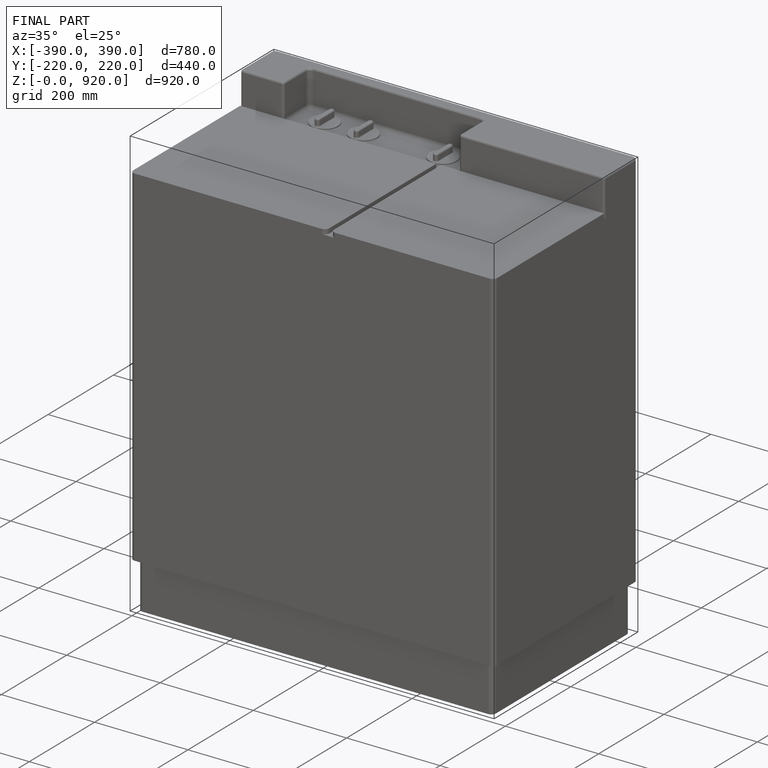
[diagram: finished part — iso view with bounding-box wireframe]
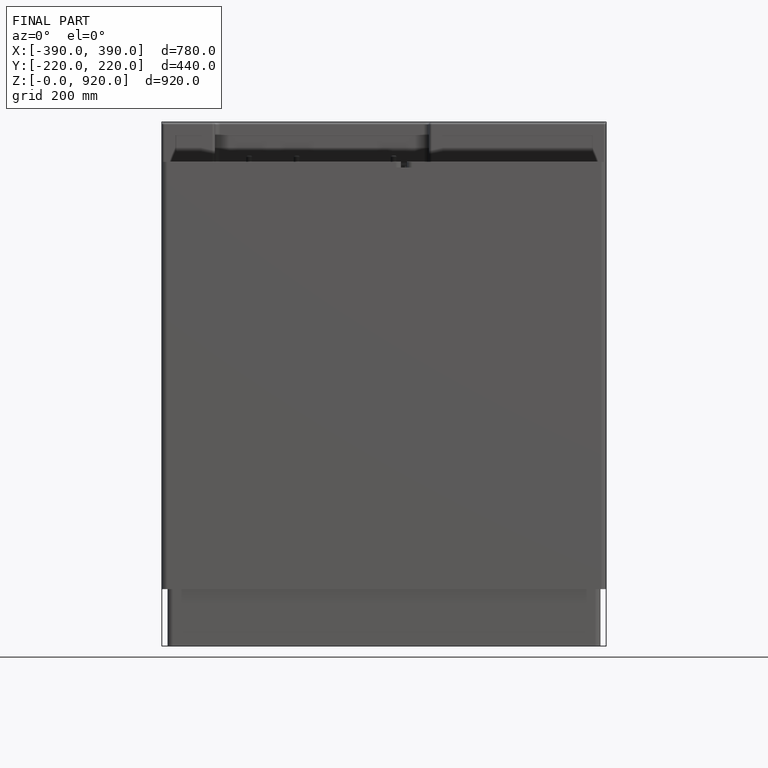
[diagram: finished part — front view with bounding-box wireframe]
